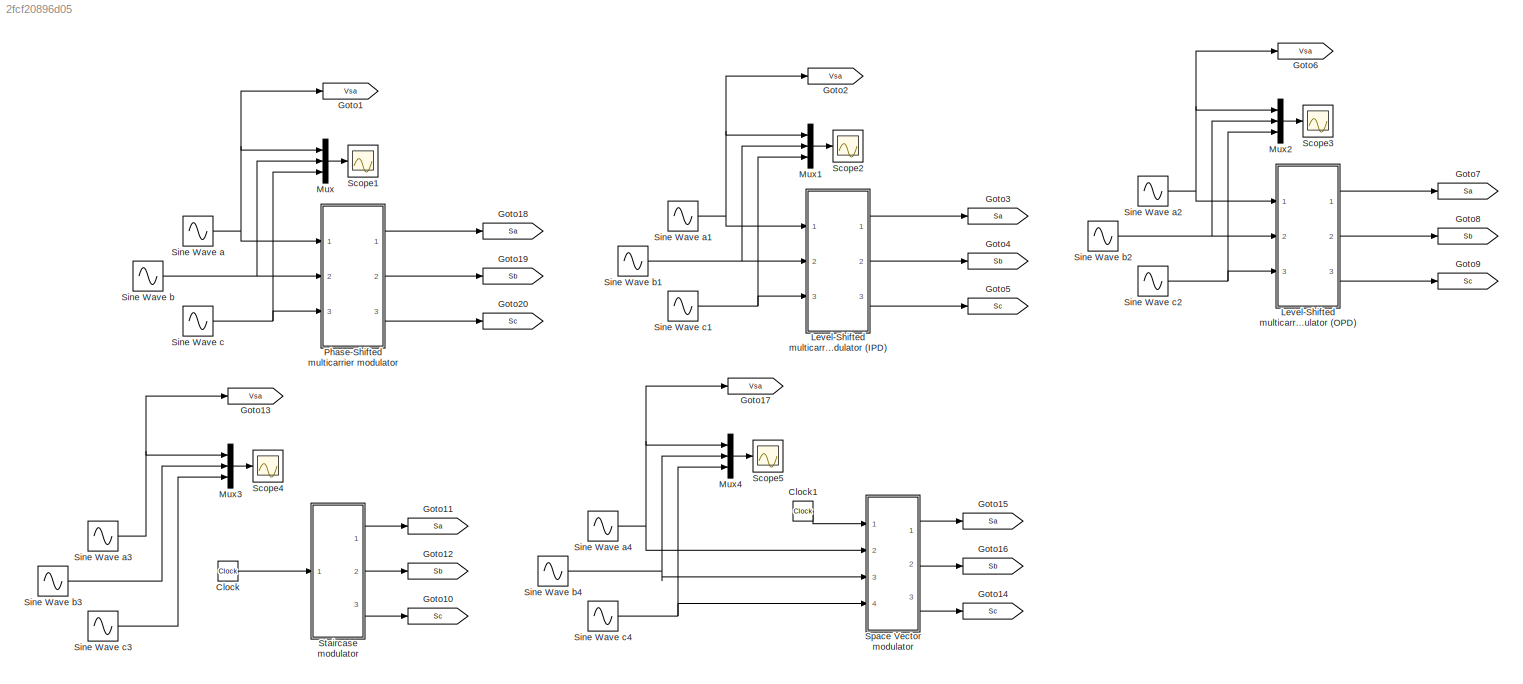
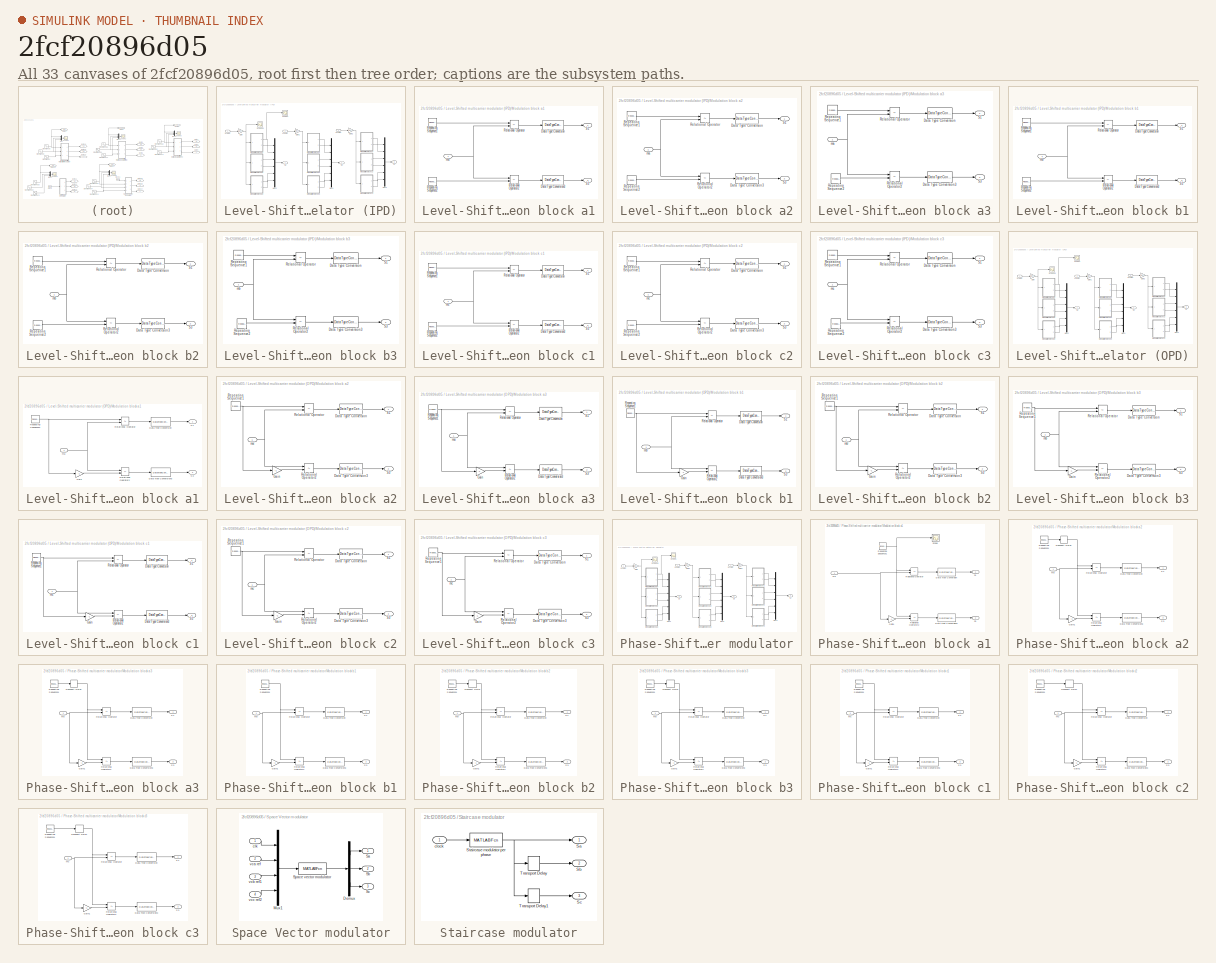
[diagram: thumbnail index - all 33 canvases of the model, root first then tree order]
MODEL slx_2fcf20896d05
KIND model
CONFIG InitFcn = GlobalParam;
BLOCK [Clock] Clock
BLOCK [Clock] Clock1
BLOCK [Goto] Goto1
  GotoTag = Vsa
BLOCK [Goto] Goto10
  GotoTag = Sc
BLOCK [Goto] Goto11
  GotoTag = Sa
BLOCK [Goto] Goto12
  GotoTag = Sb
BLOCK [Goto] Goto13
  GotoTag = Vsa
BLOCK [Goto] Goto14
  GotoTag = Sc
BLOCK [Goto] Goto15
  GotoTag = Sa
BLOCK [Goto] Goto16
  GotoTag = Sb
BLOCK [Goto] Goto17
  GotoTag = Vsa
BLOCK [Goto] Goto18
  GotoTag = Sa
BLOCK [Goto] Goto19
  GotoTag = Sb
BLOCK [Goto] Goto2
  GotoTag = Vsa
BLOCK [Goto] Goto20
  GotoTag = Sc
BLOCK [Goto] Goto3
  GotoTag = Sa
BLOCK [Goto] Goto4
  GotoTag = Sb
BLOCK [Goto] Goto5
  GotoTag = Sc
BLOCK [Goto] Goto6
  GotoTag = Vsa
BLOCK [Goto] Goto7
  GotoTag = Sa
BLOCK [Goto] Goto8
  GotoTag = Sb
BLOCK [Goto] Goto9
  GotoTag = Sc
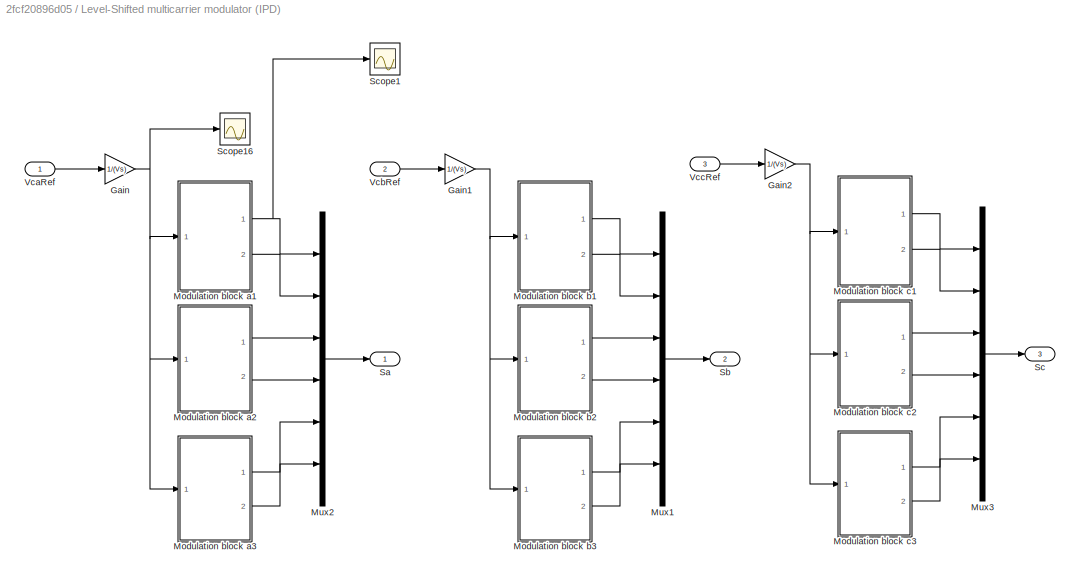
BLOCK [SubSystem] Level-Shifted multicarrier modulator (IPD)
  Ports = [3, 3]
  RequestExecContextInheritance = off
BLOCK [Gain] Level-Shifted multicarrier modulator (IPD)/Gain
  Gain = 1/(Vs)
  OutDataTypeStr = Inherit: Inherit via internal rule
  ParamDataTypeStr = Inherit: Inherit via internal rule
  SaturateOnIntegerOverflow = off
BLOCK [Gain] Level-Shifted multicarrier modulator (IPD)/Gain1
  Gain = 1/(Vs)
  OutDataTypeStr = Inherit: Inherit via internal rule
  ParamDataTypeStr = Inherit: Inherit via internal rule
  SaturateOnIntegerOverflow = off
BLOCK [Gain] Level-Shifted multicarrier modulator (IPD)/Gain2
  Gain = 1/(Vs)
  OutDataTypeStr = Inherit: Inherit via internal rule
  ParamDataTypeStr = Inherit: Inherit via internal rule
  SaturateOnIntegerOverflow = off
BLOCK [SubSystem] Level-Shifted multicarrier modulator (IPD)/Modulation block a1
  Ports = [1, 2]
  RequestExecContextInheritance = off
BLOCK [DataTypeConversion] Level-Shifted multicarrier modulator (IPD)/Modulation block a1/Data Type Conversion
  OutDataTypeStr = double
  RndMeth = Floor
  SaturateOnIntegerOverflow = off
BLOCK [DataTypeConversion] Level-Shifted multicarrier modulator (IPD)/Modulation block a1/Data Type Conversion3
  OutDataTypeStr = double
  RndMeth = Floor
  SaturateOnIntegerOverflow = off
BLOCK [RelationalOperator] Level-Shifted multicarrier modulator (IPD)/Modulation block a1/Relational Operator
  InputSameDT = off
  Operator = <=
  OutDataTypeStr = boolean
  Ports = [2, 1]
BLOCK [RelationalOperator] Level-Shifted multicarrier modulator (IPD)/Modulation block a1/Relational Operator2
  InputSameDT = off
  Operator = <=
  OutDataTypeStr = boolean
  Ports = [2, 1]
BLOCK [Reference] Level-Shifted multicarrier modulator (IPD)/Modulation block a1/Repeating Sequence1  REF=simulink/Sources/Repeating
Sequence
  Ports = [0, 1]
  SourceBlock = simulink/Sources/Repeating\nSequence
  SourceType = Repeating table
  rep_seq_t = [0 (1/fm)/2  1/fm]
  rep_seq_y = [4*vcrls 6*vcrls 4*vcrls]
BLOCK [Reference] Level-Shifted multicarrier modulator (IPD)/Modulation block a1/Repeating Sequence2  REF=simulink/Sources/Repeating
Sequence
  Ports = [0, 1]
  SourceBlock = simulink/Sources/Repeating\nSequence
  SourceType = Repeating table
  rep_seq_t = [0 (1/fm)/2  1/fm]
  rep_seq_y = [-6*vcrls -4*vcrls -6*vcrls]
BLOCK [Outport] Level-Shifted multicarrier modulator (IPD)/Modulation block a1/S1
  IconDisplay = Port number
BLOCK [Outport] Level-Shifted multicarrier modulator (IPD)/Modulation block a1/S3
  IconDisplay = Port number
  Port = 2
BLOCK [Inport] Level-Shifted multicarrier modulator (IPD)/Modulation block a1/ma
  IconDisplay = Port number
BLOCK [SubSystem] Level-Shifted multicarrier modulator (IPD)/Modulation block a2
  Ports = [1, 2]
  RequestExecContextInheritance = off
BLOCK [DataTypeConversion] Level-Shifted multicarrier modulator (IPD)/Modulation block a2/Data Type Conversion
  OutDataTypeStr = double
  RndMeth = Floor
  SaturateOnIntegerOverflow = off
BLOCK [DataTypeConversion] Level-Shifted multicarrier modulator (IPD)/Modulation block a2/Data Type Conversion3
  OutDataTypeStr = double
  RndMeth = Floor
  SaturateOnIntegerOverflow = off
BLOCK [RelationalOperator] Level-Shifted multicarrier modulator (IPD)/Modulation block a2/Relational Operator
  InputSameDT = off
  Operator = <=
  OutDataTypeStr = boolean
  Ports = [2, 1]
BLOCK [RelationalOperator] Level-Shifted multicarrier modulator (IPD)/Modulation block a2/Relational Operator2
  InputSameDT = off
  Operator = <=
  OutDataTypeStr = boolean
  Ports = [2, 1]
BLOCK [Reference] Level-Shifted multicarrier modulator (IPD)/Modulation block a2/Repeating Sequence1  REF=simulink/Sources/Repeating
Sequence
  Ports = [0, 1]
  SourceBlock = simulink/Sources/Repeating\nSequence
  SourceType = Repeating table
  rep_seq_t = [0 (1/fm)/2  1/fm]
  rep_seq_y = [2*vcrls 4*vcrls 2*vcrls]
BLOCK [Reference] Level-Shifted multicarrier modulator (IPD)/Modulation block a2/Repeating Sequence2  REF=simulink/Sources/Repeating
Sequence
  Ports = [0, 1]
  SourceBlock = simulink/Sources/Repeating\nSequence
  SourceType = Repeating table
  rep_seq_t = [0 (1/fm)/2  1/fm]
  rep_seq_y = [-4*vcrls -2*vcrls -4*vcrls]
BLOCK [Outport] Level-Shifted multicarrier modulator (IPD)/Modulation block a2/S1
  IconDisplay = Port number
BLOCK [Outport] Level-Shifted multicarrier modulator (IPD)/Modulation block a2/S3
  IconDisplay = Port number
  Port = 2
BLOCK [Inport] Level-Shifted multicarrier modulator (IPD)/Modulation block a2/ma
  IconDisplay = Port number
BLOCK [SubSystem] Level-Shifted multicarrier modulator (IPD)/Modulation block a3
  Ports = [1, 2]
  RequestExecContextInheritance = off
BLOCK [DataTypeConversion] Level-Shifted multicarrier modulator (IPD)/Modulation block a3/Data Type Conversion
  OutDataTypeStr = double
  RndMeth = Floor
  SaturateOnIntegerOverflow = off
BLOCK [DataTypeConversion] Level-Shifted multicarrier modulator (IPD)/Modulation block a3/Data Type Conversion3
  OutDataTypeStr = double
  RndMeth = Floor
  SaturateOnIntegerOverflow = off
BLOCK [RelationalOperator] Level-Shifted multicarrier modulator (IPD)/Modulation block a3/Relational Operator
  InputSameDT = off
  Operator = <=
  OutDataTypeStr = boolean
  Ports = [2, 1]
BLOCK [RelationalOperator] Level-Shifted multicarrier modulator (IPD)/Modulation block a3/Relational Operator2
  InputSameDT = off
  Operator = <=
  OutDataTypeStr = boolean
  Ports = [2, 1]
BLOCK [Reference] Level-Shifted multicarrier modulator (IPD)/Modulation block a3/Repeating Sequence1  REF=simulink/Sources/Repeating
Sequence
  Ports = [0, 1]
  SourceBlock = simulink/Sources/Repeating\nSequence
  SourceType = Repeating table
  rep_seq_t = [0 (1/fm)/2  1/fm]
  rep_seq_y = [0*vcrls 2*vcrls 0*vcrls]
BLOCK [Reference] Level-Shifted multicarrier modulator (IPD)/Modulation block a3/Repeating Sequence2  REF=simulink/Sources/Repeating
Sequence
  Ports = [0, 1]
  SourceBlock = simulink/Sources/Repeating\nSequence
  SourceType = Repeating table
  rep_seq_t = [0 (1/fm)/2  1/fm]
  rep_seq_y = [-2*vcrls 0 -2*vcrls]
BLOCK [Outport] Level-Shifted multicarrier modulator (IPD)/Modulation block a3/S1
  IconDisplay = Port number
BLOCK [Outport] Level-Shifted multicarrier modulator (IPD)/Modulation block a3/S3
  IconDisplay = Port number
  Port = 2
BLOCK [Inport] Level-Shifted multicarrier modulator (IPD)/Modulation block a3/ma
  IconDisplay = Port number
BLOCK [SubSystem] Level-Shifted multicarrier modulator (IPD)/Modulation block b1
  Ports = [1, 2]
  RequestExecContextInheritance = off
BLOCK [DataTypeConversion] Level-Shifted multicarrier modulator (IPD)/Modulation block b1/Data Type Conversion
  OutDataTypeStr = double
  RndMeth = Floor
  SaturateOnIntegerOverflow = off
BLOCK [DataTypeConversion] Level-Shifted multicarrier modulator (IPD)/Modulation block b1/Data Type Conversion3
  OutDataTypeStr = double
  RndMeth = Floor
  SaturateOnIntegerOverflow = off
BLOCK [RelationalOperator] Level-Shifted multicarrier modulator (IPD)/Modulation block b1/Relational Operator
  InputSameDT = off
  Operator = <=
  OutDataTypeStr = boolean
  Ports = [2, 1]
BLOCK [RelationalOperator] Level-Shifted multicarrier modulator (IPD)/Modulation block b1/Relational Operator2
  InputSameDT = off
  Operator = <=
  OutDataTypeStr = boolean
  Ports = [2, 1]
BLOCK [Reference] Level-Shifted multicarrier modulator (IPD)/Modulation block b1/Repeating Sequence1  REF=simulink/Sources/Repeating
Sequence
  Ports = [0, 1]
  SourceBlock = simulink/Sources/Repeating\nSequence
  SourceType = Repeating table
  rep_seq_t = [0 (1/fm)/2  1/fm]
  rep_seq_y = [4*vcrls 6*vcrls 4*vcrls]
BLOCK [Reference] Level-Shifted multicarrier modulator (IPD)/Modulation block b1/Repeating Sequence2  REF=simulink/Sources/Repeating
Sequence
  Ports = [0, 1]
  SourceBlock = simulink/Sources/Repeating\nSequence
  SourceType = Repeating table
  rep_seq_t = [0 (1/fm)/2  1/fm]
  rep_seq_y = [-6*vcrls -4*vcrls -6*vcrls]
BLOCK [Outport] Level-Shifted multicarrier modulator (IPD)/Modulation block b1/S1
  IconDisplay = Port number
BLOCK [Outport] Level-Shifted multicarrier modulator (IPD)/Modulation block b1/S3
  IconDisplay = Port number
  Port = 2
BLOCK [Inport] Level-Shifted multicarrier modulator (IPD)/Modulation block b1/mb
  IconDisplay = Port number
BLOCK [SubSystem] Level-Shifted multicarrier modulator (IPD)/Modulation block b2
  Ports = [1, 2]
  RequestExecContextInheritance = off
BLOCK [DataTypeConversion] Level-Shifted multicarrier modulator (IPD)/Modulation block b2/Data Type Conversion
  OutDataTypeStr = double
  RndMeth = Floor
  SaturateOnIntegerOverflow = off
BLOCK [DataTypeConversion] Level-Shifted multicarrier modulator (IPD)/Modulation block b2/Data Type Conversion3
  OutDataTypeStr = double
  RndMeth = Floor
  SaturateOnIntegerOverflow = off
BLOCK [RelationalOperator] Level-Shifted multicarrier modulator (IPD)/Modulation block b2/Relational Operator
  InputSameDT = off
  Operator = <=
  OutDataTypeStr = boolean
  Ports = [2, 1]
BLOCK [RelationalOperator] Level-Shifted multicarrier modulator (IPD)/Modulation block b2/Relational Operator2
  InputSameDT = off
  Operator = <=
  OutDataTypeStr = boolean
  Ports = [2, 1]
BLOCK [Reference] Level-Shifted multicarrier modulator (IPD)/Modulation block b2/Repeating Sequence1  REF=simulink/Sources/Repeating
Sequence
  Ports = [0, 1]
  SourceBlock = simulink/Sources/Repeating\nSequence
  SourceType = Repeating table
  rep_seq_t = [0 (1/fm)/2  1/fm]
  rep_seq_y = [2*vcrls 4*vcrls 2*vcrls]
BLOCK [Reference] Level-Shifted multicarrier modulator (IPD)/Modulation block b2/Repeating Sequence2  REF=simulink/Sources/Repeating
Sequence
  Ports = [0, 1]
  SourceBlock = simulink/Sources/Repeating\nSequence
  SourceType = Repeating table
  rep_seq_t = [0 (1/fm)/2  1/fm]
  rep_seq_y = [-4*vcrls -2*vcrls -4*vcrls]
BLOCK [Outport] Level-Shifted multicarrier modulator (IPD)/Modulation block b2/S1
  IconDisplay = Port number
BLOCK [Outport] Level-Shifted multicarrier modulator (IPD)/Modulation block b2/S3
  IconDisplay = Port number
  Port = 2
BLOCK [Inport] Level-Shifted multicarrier modulator (IPD)/Modulation block b2/mb
  IconDisplay = Port number
BLOCK [SubSystem] Level-Shifted multicarrier modulator (IPD)/Modulation block b3
  Ports = [1, 2]
  RequestExecContextInheritance = off
BLOCK [DataTypeConversion] Level-Shifted multicarrier modulator (IPD)/Modulation block b3/Data Type Conversion
  OutDataTypeStr = double
  RndMeth = Floor
  SaturateOnIntegerOverflow = off
BLOCK [DataTypeConversion] Level-Shifted multicarrier modulator (IPD)/Modulation block b3/Data Type Conversion3
  OutDataTypeStr = double
  RndMeth = Floor
  SaturateOnIntegerOverflow = off
BLOCK [RelationalOperator] Level-Shifted multicarrier modulator (IPD)/Modulation block b3/Relational Operator
  InputSameDT = off
  Operator = <=
  OutDataTypeStr = boolean
  Ports = [2, 1]
BLOCK [RelationalOperator] Level-Shifted multicarrier modulator (IPD)/Modulation block b3/Relational Operator2
  InputSameDT = off
  Operator = <=
  OutDataTypeStr = boolean
  Ports = [2, 1]
BLOCK [Reference] Level-Shifted multicarrier modulator (IPD)/Modulation block b3/Repeating Sequence1  REF=simulink/Sources/Repeating
Sequence
  Ports = [0, 1]
  SourceBlock = simulink/Sources/Repeating\nSequence
  SourceType = Repeating table
  rep_seq_t = [0 (1/fm)/2  1/fm]
  rep_seq_y = [0*vcrls 2*vcrls 0*vcrls]
BLOCK [Reference] Level-Shifted multicarrier modulator (IPD)/Modulation block b3/Repeating Sequence2  REF=simulink/Sources/Repeating
Sequence
  Ports = [0, 1]
  SourceBlock = simulink/Sources/Repeating\nSequence
  SourceType = Repeating table
  rep_seq_t = [0 (1/fm)/2  1/fm]
  rep_seq_y = [-2*vcrls 0 -2*vcrls]
BLOCK [Outport] Level-Shifted multicarrier modulator (IPD)/Modulation block b3/S1
  IconDisplay = Port number
BLOCK [Outport] Level-Shifted multicarrier modulator (IPD)/Modulation block b3/S3
  IconDisplay = Port number
  Port = 2
BLOCK [Inport] Level-Shifted multicarrier modulator (IPD)/Modulation block b3/mb
  IconDisplay = Port number
BLOCK [SubSystem] Level-Shifted multicarrier modulator (IPD)/Modulation block c1
  Ports = [1, 2]
  RequestExecContextInheritance = off
BLOCK [DataTypeConversion] Level-Shifted multicarrier modulator (IPD)/Modulation block c1/Data Type Conversion
  OutDataTypeStr = double
  RndMeth = Floor
  SaturateOnIntegerOverflow = off
BLOCK [DataTypeConversion] Level-Shifted multicarrier modulator (IPD)/Modulation block c1/Data Type Conversion3
  OutDataTypeStr = double
  RndMeth = Floor
  SaturateOnIntegerOverflow = off
BLOCK [RelationalOperator] Level-Shifted multicarrier modulator (IPD)/Modulation block c1/Relational Operator
  InputSameDT = off
  Operator = <=
  OutDataTypeStr = boolean
  Ports = [2, 1]
BLOCK [RelationalOperator] Level-Shifted multicarrier modulator (IPD)/Modulation block c1/Relational Operator2
  InputSameDT = off
  Operator = <=
  OutDataTypeStr = boolean
  Ports = [2, 1]
BLOCK [Reference] Level-Shifted multicarrier modulator (IPD)/Modulation block c1/Repeating Sequence1  REF=simulink/Sources/Repeating
Sequence
  Ports = [0, 1]
  SourceBlock = simulink/Sources/Repeating\nSequence
  SourceType = Repeating table
  rep_seq_t = [0 (1/fm)/2  1/fm]
  rep_seq_y = [4*vcrls 6*vcrls 4*vcrls]
BLOCK [Reference] Level-Shifted multicarrier modulator (IPD)/Modulation block c1/Repeating Sequence2  REF=simulink/Sources/Repeating
Sequence
  Ports = [0, 1]
  SourceBlock = simulink/Sources/Repeating\nSequence
  SourceType = Repeating table
  rep_seq_t = [0 (1/fm)/2  1/fm]
  rep_seq_y = [-6*vcrls -4*vcrls -6*vcrls]
BLOCK [Outport] Level-Shifted multicarrier modulator (IPD)/Modulation block c1/S1
  IconDisplay = Port number
BLOCK [Outport] Level-Shifted multicarrier modulator (IPD)/Modulation block c1/S3
  IconDisplay = Port number
  Port = 2
BLOCK [Inport] Level-Shifted multicarrier modulator (IPD)/Modulation block c1/mc
  IconDisplay = Port number
BLOCK [SubSystem] Level-Shifted multicarrier modulator (IPD)/Modulation block c2
  Ports = [1, 2]
  RequestExecContextInheritance = off
BLOCK [DataTypeConversion] Level-Shifted multicarrier modulator (IPD)/Modulation block c2/Data Type Conversion
  OutDataTypeStr = double
  RndMeth = Floor
  SaturateOnIntegerOverflow = off
BLOCK [DataTypeConversion] Level-Shifted multicarrier modulator (IPD)/Modulation block c2/Data Type Conversion3
  OutDataTypeStr = double
  RndMeth = Floor
  SaturateOnIntegerOverflow = off
BLOCK [RelationalOperator] Level-Shifted multicarrier modulator (IPD)/Modulation block c2/Relational Operator
  InputSameDT = off
  Operator = <=
  OutDataTypeStr = boolean
  Ports = [2, 1]
BLOCK [RelationalOperator] Level-Shifted multicarrier modulator (IPD)/Modulation block c2/Relational Operator2
  InputSameDT = off
  Operator = <=
  OutDataTypeStr = boolean
  Ports = [2, 1]
BLOCK [Reference] Level-Shifted multicarrier modulator (IPD)/Modulation block c2/Repeating Sequence1  REF=simulink/Sources/Repeating
Sequence
  Ports = [0, 1]
  SourceBlock = simulink/Sources/Repeating\nSequence
  SourceType = Repeating table
  rep_seq_t = [0 (1/fm)/2  1/fm]
  rep_seq_y = [2*vcrls 4*vcrls 2*vcrls]
BLOCK [Reference] Level-Shifted multicarrier modulator (IPD)/Modulation block c2/Repeating Sequence2  REF=simulink/Sources/Repeating
Sequence
  Ports = [0, 1]
  SourceBlock = simulink/Sources/Repeating\nSequence
  SourceType = Repeating table
  rep_seq_t = [0 (1/fm)/2  1/fm]
  rep_seq_y = [-4*vcrls -2*vcrls -4*vcrls]
BLOCK [Outport] Level-Shifted multicarrier modulator (IPD)/Modulation block c2/S1
  IconDisplay = Port number
BLOCK [Outport] Level-Shifted multicarrier modulator (IPD)/Modulation block c2/S3
  IconDisplay = Port number
  Port = 2
BLOCK [Inport] Level-Shifted multicarrier modulator (IPD)/Modulation block c2/mc
  IconDisplay = Port number
BLOCK [SubSystem] Level-Shifted multicarrier modulator (IPD)/Modulation block c3
  Ports = [1, 2]
  RequestExecContextInheritance = off
BLOCK [DataTypeConversion] Level-Shifted multicarrier modulator (IPD)/Modulation block c3/Data Type Conversion
  OutDataTypeStr = double
  RndMeth = Floor
  SaturateOnIntegerOverflow = off
BLOCK [DataTypeConversion] Level-Shifted multicarrier modulator (IPD)/Modulation block c3/Data Type Conversion3
  OutDataTypeStr = double
  RndMeth = Floor
  SaturateOnIntegerOverflow = off
BLOCK [RelationalOperator] Level-Shifted multicarrier modulator (IPD)/Modulation block c3/Relational Operator
  InputSameDT = off
  Operator = <=
  OutDataTypeStr = boolean
  Ports = [2, 1]
BLOCK [RelationalOperator] Level-Shifted multicarrier modulator (IPD)/Modulation block c3/Relational Operator2
  InputSameDT = off
  Operator = <=
  OutDataTypeStr = boolean
  Ports = [2, 1]
BLOCK [Reference] Level-Shifted multicarrier modulator (IPD)/Modulation block c3/Repeating Sequence1  REF=simulink/Sources/Repeating
Sequence
  Ports = [0, 1]
  SourceBlock = simulink/Sources/Repeating\nSequence
  SourceType = Repeating table
  rep_seq_t = [0 (1/fm)/2  1/fm]
  rep_seq_y = [0*vcrls 2*vcrls 0*vcrls]
BLOCK [Reference] Level-Shifted multicarrier modulator (IPD)/Modulation block c3/Repeating Sequence2  REF=simulink/Sources/Repeating
Sequence
  Ports = [0, 1]
  SourceBlock = simulink/Sources/Repeating\nSequence
  SourceType = Repeating table
  rep_seq_t = [0 (1/fm)/2  1/fm]
  rep_seq_y = [-2*vcrls 0 -2*vcrls]
BLOCK [Outport] Level-Shifted multicarrier modulator (IPD)/Modulation block c3/S1
  IconDisplay = Port number
BLOCK [Outport] Level-Shifted multicarrier modulator (IPD)/Modulation block c3/S3
  IconDisplay = Port number
  Port = 2
BLOCK [Inport] Level-Shifted multicarrier modulator (IPD)/Modulation block c3/mc
  IconDisplay = Port number
BLOCK [Mux] Level-Shifted multicarrier modulator (IPD)/Mux1
  DisplayOption = bar
  Inputs = 6
  Ports = [6, 1]
BLOCK [Mux] Level-Shifted multicarrier modulator (IPD)/Mux2
  DisplayOption = bar
  Inputs = 6
  Ports = [6, 1]
BLOCK [Mux] Level-Shifted multicarrier modulator (IPD)/Mux3
  DisplayOption = bar
  Inputs = 6
  Ports = [6, 1]
BLOCK [Outport] Level-Shifted multicarrier modulator (IPD)/Sa
  IconDisplay = Port number
BLOCK [Outport] Level-Shifted multicarrier modulator (IPD)/Sb
  IconDisplay = Port number
  Port = 2
BLOCK [Outport] Level-Shifted multicarrier modulator (IPD)/Sc
  IconDisplay = Port number
  Port = 3
BLOCK [Scope] Level-Shifted multicarrier modulator (IPD)/Scope1
  DataFormat = StructureWithTime
  Floating = off
  LimitDataPoints = off
  NumInputPorts = 1
  Ports = [1]
  SampleTime = 0
  SaveName = vg11
  SaveToWorkspace = on
  ShowLegends = off
BLOCK [Scope] Level-Shifted multicarrier modulator (IPD)/Scope16
  Floating = off
  LimitDataPoints = off
  NumInputPorts = 1
  Ports = [1]
  SampleTime = 0
  SaveName = vcareftri
  SaveToWorkspace = on
  ShowLegends = off
  YMax = 0.7
  YMin = -1
BLOCK [Inport] Level-Shifted multicarrier modulator (IPD)/VcaRef
  IconDisplay = Port number
BLOCK [Inport] Level-Shifted multicarrier modulator (IPD)/VcbRef
  IconDisplay = Port number
  Port = 2
BLOCK [Inport] Level-Shifted multicarrier modulator (IPD)/VccRef
  IconDisplay = Port number
  Port = 3
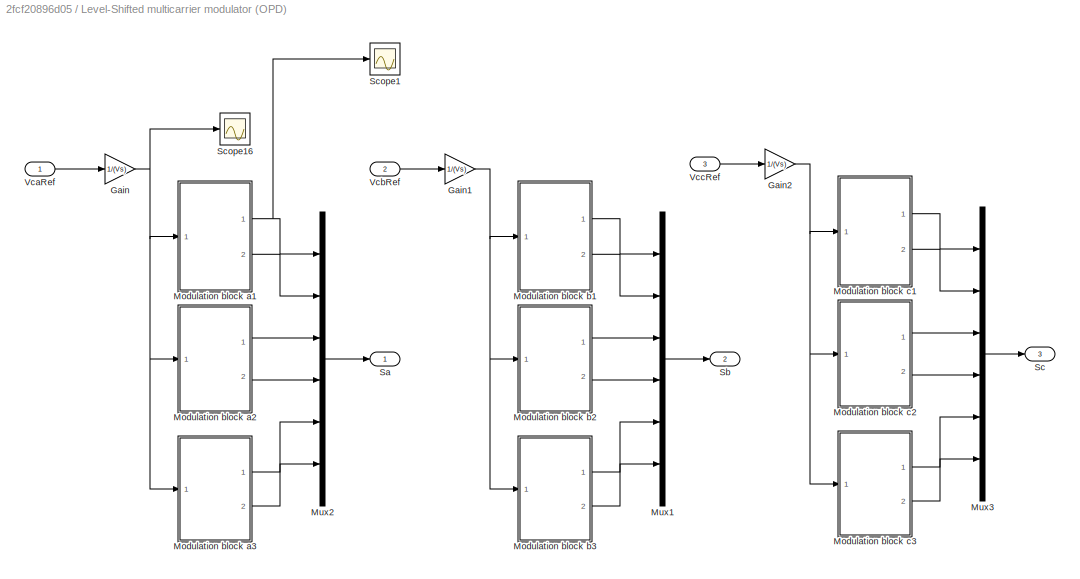
BLOCK [SubSystem] Level-Shifted multicarrier modulator (OPD)
  Ports = [3, 3]
  RequestExecContextInheritance = off
BLOCK [Gain] Level-Shifted multicarrier modulator (OPD)/Gain
  Gain = 1/(Vs)
  OutDataTypeStr = Inherit: Inherit via internal rule
  ParamDataTypeStr = Inherit: Inherit via internal rule
  SaturateOnIntegerOverflow = off
BLOCK [Gain] Level-Shifted multicarrier modulator (OPD)/Gain1
  Gain = 1/(Vs)
  OutDataTypeStr = Inherit: Inherit via internal rule
  ParamDataTypeStr = Inherit: Inherit via internal rule
  SaturateOnIntegerOverflow = off
BLOCK [Gain] Level-Shifted multicarrier modulator (OPD)/Gain2
  Gain = 1/(Vs)
  OutDataTypeStr = Inherit: Inherit via internal rule
  ParamDataTypeStr = Inherit: Inherit via internal rule
  SaturateOnIntegerOverflow = off
BLOCK [SubSystem] Level-Shifted multicarrier modulator (OPD)/Modulation block a1
  Ports = [1, 2]
  RequestExecContextInheritance = off
BLOCK [DataTypeConversion] Level-Shifted multicarrier modulator (OPD)/Modulation block a1/Data Type Conversion
  OutDataTypeStr = double
  RndMeth = Floor
  SaturateOnIntegerOverflow = off
BLOCK [DataTypeConversion] Level-Shifted multicarrier modulator (OPD)/Modulation block a1/Data Type Conversion3
  OutDataTypeStr = double
  RndMeth = Floor
  SaturateOnIntegerOverflow = off
BLOCK [Gain] Level-Shifted multicarrier modulator (OPD)/Modulation block a1/Gain
  Gain = -1
  OutDataTypeStr = Inherit: Inherit via internal rule
  ParamDataTypeStr = Inherit: Inherit via internal rule
  SaturateOnIntegerOverflow = off
BLOCK [RelationalOperator] Level-Shifted multicarrier modulator (OPD)/Modulation block a1/Relational Operator
  InputSameDT = off
  Operator = <=
  OutDataTypeStr = boolean
  Ports = [2, 1]
BLOCK [RelationalOperator] Level-Shifted multicarrier modulator (OPD)/Modulation block a1/Relational Operator2
  InputSameDT = off
  Operator = <=
  OutDataTypeStr = boolean
  Ports = [2, 1]
BLOCK [Reference] Level-Shifted multicarrier modulator (OPD)/Modulation block a1/Repeating Sequence1  REF=simulink/Sources/Repeating
Sequence
  Ports = [0, 1]
  SourceBlock = simulink/Sources/Repeating\nSequence
  SourceType = Repeating table
  rep_seq_t = [0 (1/fm)/2  1/fm]
  rep_seq_y = [4*vcrls 6*vcrls 4*vcrls]
BLOCK [Outport] Level-Shifted multicarrier modulator (OPD)/Modulation block a1/S1
  IconDisplay = Port number
BLOCK [Outport] Level-Shifted multicarrier modulator (OPD)/Modulation block a1/S3
  IconDisplay = Port number
  Port = 2
BLOCK [Inport] Level-Shifted multicarrier modulator (OPD)/Modulation block a1/ma
  IconDisplay = Port number
BLOCK [SubSystem] Level-Shifted multicarrier modulator (OPD)/Modulation block a2
  Ports = [1, 2]
  RequestExecContextInheritance = off
BLOCK [DataTypeConversion] Level-Shifted multicarrier modulator (OPD)/Modulation block a2/Data Type Conversion
  OutDataTypeStr = double
  RndMeth = Floor
  SaturateOnIntegerOverflow = off
BLOCK [DataTypeConversion] Level-Shifted multicarrier modulator (OPD)/Modulation block a2/Data Type Conversion3
  OutDataTypeStr = double
  RndMeth = Floor
  SaturateOnIntegerOverflow = off
BLOCK [Gain] Level-Shifted multicarrier modulator (OPD)/Modulation block a2/Gain
  Gain = -1
  OutDataTypeStr = Inherit: Inherit via internal rule
  ParamDataTypeStr = Inherit: Inherit via internal rule
  SaturateOnIntegerOverflow = off
BLOCK [RelationalOperator] Level-Shifted multicarrier modulator (OPD)/Modulation block a2/Relational Operator
  InputSameDT = off
  Operator = <=
  OutDataTypeStr = boolean
  Ports = [2, 1]
BLOCK [RelationalOperator] Level-Shifted multicarrier modulator (OPD)/Modulation block a2/Relational Operator2
  InputSameDT = off
  Operator = <=
  OutDataTypeStr = boolean
  Ports = [2, 1]
BLOCK [Reference] Level-Shifted multicarrier modulator (OPD)/Modulation block a2/Repeating Sequence1  REF=simulink/Sources/Repeating
Sequence
  Ports = [0, 1]
  SourceBlock = simulink/Sources/Repeating\nSequence
  SourceType = Repeating table
  rep_seq_t = [0 (1/fm)/2  1/fm]
  rep_seq_y = [2*vcrls 4*vcrls 2*vcrls]
BLOCK [Outport] Level-Shifted multicarrier modulator (OPD)/Modulation block a2/S1
  IconDisplay = Port number
BLOCK [Outport] Level-Shifted multicarrier modulator (OPD)/Modulation block a2/S3
  IconDisplay = Port number
  Port = 2
BLOCK [Inport] Level-Shifted multicarrier modulator (OPD)/Modulation block a2/ma
  IconDisplay = Port number
BLOCK [SubSystem] Level-Shifted multicarrier modulator (OPD)/Modulation block a3
  Ports = [1, 2]
  RequestExecContextInheritance = off
BLOCK [DataTypeConversion] Level-Shifted multicarrier modulator (OPD)/Modulation block a3/Data Type Conversion
  OutDataTypeStr = double
  RndMeth = Floor
  SaturateOnIntegerOverflow = off
BLOCK [DataTypeConversion] Level-Shifted multicarrier modulator (OPD)/Modulation block a3/Data Type Conversion3
  OutDataTypeStr = double
  RndMeth = Floor
  SaturateOnIntegerOverflow = off
BLOCK [Gain] Level-Shifted multicarrier modulator (OPD)/Modulation block a3/Gain
  Gain = -1
  OutDataTypeStr = Inherit: Inherit via internal rule
  ParamDataTypeStr = Inherit: Inherit via internal rule
  SaturateOnIntegerOverflow = off
BLOCK [RelationalOperator] Level-Shifted multicarrier modulator (OPD)/Modulation block a3/Relational Operator
  InputSameDT = off
  Operator = <=
  OutDataTypeStr = boolean
  Ports = [2, 1]
BLOCK [RelationalOperator] Level-Shifted multicarrier modulator (OPD)/Modulation block a3/Relational Operator2
  InputSameDT = off
  Operator = <=
  OutDataTypeStr = boolean
  Ports = [2, 1]
BLOCK [Reference] Level-Shifted multicarrier modulator (OPD)/Modulation block a3/Repeating Sequence1  REF=simulink/Sources/Repeating
Sequence
  Ports = [0, 1]
  SourceBlock = simulink/Sources/Repeating\nSequence
  SourceType = Repeating table
  rep_seq_t = [0 (1/fm)/2  1/fm]
  rep_seq_y = [0*vcrls 2*vcrls 0*vcrls]
BLOCK [Outport] Level-Shifted multicarrier modulator (OPD)/Modulation block a3/S1
  IconDisplay = Port number
BLOCK [Outport] Level-Shifted multicarrier modulator (OPD)/Modulation block a3/S3
  IconDisplay = Port number
  Port = 2
BLOCK [Inport] Level-Shifted multicarrier modulator (OPD)/Modulation block a3/ma
  IconDisplay = Port number
BLOCK [SubSystem] Level-Shifted multicarrier modulator (OPD)/Modulation block b1
  Ports = [1, 2]
  RequestExecContextInheritance = off
BLOCK [DataTypeConversion] Level-Shifted multicarrier modulator (OPD)/Modulation block b1/Data Type Conversion
  OutDataTypeStr = double
  RndMeth = Floor
  SaturateOnIntegerOverflow = off
BLOCK [DataTypeConversion] Level-Shifted multicarrier modulator (OPD)/Modulation block b1/Data Type Conversion3
  OutDataTypeStr = double
  RndMeth = Floor
  SaturateOnIntegerOverflow = off
BLOCK [Gain] Level-Shifted multicarrier modulator (OPD)/Modulation block b1/Gain
  Gain = -1
  OutDataTypeStr = Inherit: Inherit via internal rule
  ParamDataTypeStr = Inherit: Inherit via internal rule
  SaturateOnIntegerOverflow = off
BLOCK [RelationalOperator] Level-Shifted multicarrier modulator (OPD)/Modulation block b1/Relational Operator
  InputSameDT = off
  Operator = <=
  OutDataTypeStr = boolean
  Ports = [2, 1]
BLOCK [RelationalOperator] Level-Shifted multicarrier modulator (OPD)/Modulation block b1/Relational Operator2
  InputSameDT = off
  Operator = <=
  OutDataTypeStr = boolean
  Ports = [2, 1]
BLOCK [Reference] Level-Shifted multicarrier modulator (OPD)/Modulation block b1/Repeating Sequence1  REF=simulink/Sources/Repeating
Sequence
  Ports = [0, 1]
  SourceBlock = simulink/Sources/Repeating\nSequence
  SourceType = Repeating table
  rep_seq_t = [0 (1/fm)/2  1/fm]
  rep_seq_y = [4*vcrls 6*vcrls 4*vcrls]
BLOCK [Outport] Level-Shifted multicarrier modulator (OPD)/Modulation block b1/S1
  IconDisplay = Port number
BLOCK [Outport] Level-Shifted multicarrier modulator (OPD)/Modulation block b1/S3
  IconDisplay = Port number
  Port = 2
BLOCK [Inport] Level-Shifted multicarrier modulator (OPD)/Modulation block b1/mb
  IconDisplay = Port number
BLOCK [SubSystem] Level-Shifted multicarrier modulator (OPD)/Modulation block b2
  Ports = [1, 2]
  RequestExecContextInheritance = off
BLOCK [DataTypeConversion] Level-Shifted multicarrier modulator (OPD)/Modulation block b2/Data Type Conversion
  OutDataTypeStr = double
  RndMeth = Floor
  SaturateOnIntegerOverflow = off
BLOCK [DataTypeConversion] Level-Shifted multicarrier modulator (OPD)/Modulation block b2/Data Type Conversion3
  OutDataTypeStr = double
  RndMeth = Floor
  SaturateOnIntegerOverflow = off
BLOCK [Gain] Level-Shifted multicarrier modulator (OPD)/Modulation block b2/Gain
  Gain = -1
  OutDataTypeStr = Inherit: Inherit via internal rule
  ParamDataTypeStr = Inherit: Inherit via internal rule
  SaturateOnIntegerOverflow = off
BLOCK [RelationalOperator] Level-Shifted multicarrier modulator (OPD)/Modulation block b2/Relational Operator
  InputSameDT = off
  Operator = <=
  OutDataTypeStr = boolean
  Ports = [2, 1]
BLOCK [RelationalOperator] Level-Shifted multicarrier modulator (OPD)/Modulation block b2/Relational Operator2
  InputSameDT = off
  Operator = <=
  OutDataTypeStr = boolean
  Ports = [2, 1]
BLOCK [Reference] Level-Shifted multicarrier modulator (OPD)/Modulation block b2/Repeating Sequence1  REF=simulink/Sources/Repeating
Sequence
  Ports = [0, 1]
  SourceBlock = simulink/Sources/Repeating\nSequence
  SourceType = Repeating table
  rep_seq_t = [0 (1/fm)/2  1/fm]
  rep_seq_y = [2*vcrls 4*vcrls 2*vcrls]
BLOCK [Outport] Level-Shifted multicarrier modulator (OPD)/Modulation block b2/S1
  IconDisplay = Port number
BLOCK [Outport] Level-Shifted multicarrier modulator (OPD)/Modulation block b2/S3
  IconDisplay = Port number
  Port = 2
BLOCK [Inport] Level-Shifted multicarrier modulator (OPD)/Modulation block b2/mb
  IconDisplay = Port number
BLOCK [SubSystem] Level-Shifted multicarrier modulator (OPD)/Modulation block b3
  Ports = [1, 2]
  RequestExecContextInheritance = off
BLOCK [DataTypeConversion] Level-Shifted multicarrier modulator (OPD)/Modulation block b3/Data Type Conversion
  OutDataTypeStr = double
  RndMeth = Floor
  SaturateOnIntegerOverflow = off
BLOCK [DataTypeConversion] Level-Shifted multicarrier modulator (OPD)/Modulation block b3/Data Type Conversion3
  OutDataTypeStr = double
  RndMeth = Floor
  SaturateOnIntegerOverflow = off
BLOCK [Gain] Level-Shifted multicarrier modulator (OPD)/Modulation block b3/Gain
  Gain = -1
  OutDataTypeStr = Inherit: Inherit via internal rule
  ParamDataTypeStr = Inherit: Inherit via internal rule
  SaturateOnIntegerOverflow = off
BLOCK [RelationalOperator] Level-Shifted multicarrier modulator (OPD)/Modulation block b3/Relational Operator
  InputSameDT = off
  Operator = <=
  OutDataTypeStr = boolean
  Ports = [2, 1]
BLOCK [RelationalOperator] Level-Shifted multicarrier modulator (OPD)/Modulation block b3/Relational Operator2
  InputSameDT = off
  Operator = <=
  OutDataTypeStr = boolean
  Ports = [2, 1]
BLOCK [Reference] Level-Shifted multicarrier modulator (OPD)/Modulation block b3/Repeating Sequence1  REF=simulink/Sources/Repeating
Sequence
  Ports = [0, 1]
  SourceBlock = simulink/Sources/Repeating\nSequence
  SourceType = Repeating table
  rep_seq_t = [0 (1/fm)/2  1/fm]
  rep_seq_y = [0*vcrls 2*vcrls 0*vcrls]
BLOCK [Outport] Level-Shifted multicarrier modulator (OPD)/Modulation block b3/S1
  IconDisplay = Port number
BLOCK [Outport] Level-Shifted multicarrier modulator (OPD)/Modulation block b3/S3
  IconDisplay = Port number
  Port = 2
BLOCK [Inport] Level-Shifted multicarrier modulator (OPD)/Modulation block b3/mb
  IconDisplay = Port number
BLOCK [SubSystem] Level-Shifted multicarrier modulator (OPD)/Modulation block c1
  Ports = [1, 2]
  RequestExecContextInheritance = off
BLOCK [DataTypeConversion] Level-Shifted multicarrier modulator (OPD)/Modulation block c1/Data Type Conversion
  OutDataTypeStr = double
  RndMeth = Floor
  SaturateOnIntegerOverflow = off
BLOCK [DataTypeConversion] Level-Shifted multicarrier modulator (OPD)/Modulation block c1/Data Type Conversion3
  OutDataTypeStr = double
  RndMeth = Floor
  SaturateOnIntegerOverflow = off
BLOCK [Gain] Level-Shifted multicarrier modulator (OPD)/Modulation block c1/Gain
  Gain = -1
  OutDataTypeStr = Inherit: Inherit via internal rule
  ParamDataTypeStr = Inherit: Inherit via internal rule
  SaturateOnIntegerOverflow = off
BLOCK [RelationalOperator] Level-Shifted multicarrier modulator (OPD)/Modulation block c1/Relational Operator
  InputSameDT = off
  Operator = <=
  OutDataTypeStr = boolean
  Ports = [2, 1]
BLOCK [RelationalOperator] Level-Shifted multicarrier modulator (OPD)/Modulation block c1/Relational Operator2
  InputSameDT = off
  Operator = <=
  OutDataTypeStr = boolean
  Ports = [2, 1]
BLOCK [Reference] Level-Shifted multicarrier modulator (OPD)/Modulation block c1/Repeating Sequence1  REF=simulink/Sources/Repeating
Sequence
  Ports = [0, 1]
  SourceBlock = simulink/Sources/Repeating\nSequence
  SourceType = Repeating table
  rep_seq_t = [0 (1/fm)/2  1/fm]
  rep_seq_y = [4*vcrls 6*vcrls 4*vcrls]
BLOCK [Outport] Level-Shifted multicarrier modulator (OPD)/Modulation block c1/S1
  IconDisplay = Port number
BLOCK [Outport] Level-Shifted multicarrier modulator (OPD)/Modulation block c1/S3
  IconDisplay = Port number
  Port = 2
BLOCK [Inport] Level-Shifted multicarrier modulator (OPD)/Modulation block c1/mc
  IconDisplay = Port number
BLOCK [SubSystem] Level-Shifted multicarrier modulator (OPD)/Modulation block c2
  Ports = [1, 2]
  RequestExecContextInheritance = off
BLOCK [DataTypeConversion] Level-Shifted multicarrier modulator (OPD)/Modulation block c2/Data Type Conversion
  OutDataTypeStr = double
  RndMeth = Floor
  SaturateOnIntegerOverflow = off
BLOCK [DataTypeConversion] Level-Shifted multicarrier modulator (OPD)/Modulation block c2/Data Type Conversion3
  OutDataTypeStr = double
  RndMeth = Floor
  SaturateOnIntegerOverflow = off
BLOCK [Gain] Level-Shifted multicarrier modulator (OPD)/Modulation block c2/Gain
  Gain = -1
  OutDataTypeStr = Inherit: Inherit via internal rule
  ParamDataTypeStr = Inherit: Inherit via internal rule
  SaturateOnIntegerOverflow = off
BLOCK [RelationalOperator] Level-Shifted multicarrier modulator (OPD)/Modulation block c2/Relational Operator
  InputSameDT = off
  Operator = <=
  OutDataTypeStr = boolean
  Ports = [2, 1]
BLOCK [RelationalOperator] Level-Shifted multicarrier modulator (OPD)/Modulation block c2/Relational Operator2
  InputSameDT = off
  Operator = <=
  OutDataTypeStr = boolean
  Ports = [2, 1]
BLOCK [Reference] Level-Shifted multicarrier modulator (OPD)/Modulation block c2/Repeating Sequence1  REF=simulink/Sources/Repeating
Sequence
  Ports = [0, 1]
  SourceBlock = simulink/Sources/Repeating\nSequence
  SourceType = Repeating table
  rep_seq_t = [0 (1/fm)/2  1/fm]
  rep_seq_y = [2*vcrls 4*vcrls 2*vcrls]
BLOCK [Outport] Level-Shifted multicarrier modulator (OPD)/Modulation block c2/S1
  IconDisplay = Port number
BLOCK [Outport] Level-Shifted multicarrier modulator (OPD)/Modulation block c2/S3
  IconDisplay = Port number
  Port = 2
BLOCK [Inport] Level-Shifted multicarrier modulator (OPD)/Modulation block c2/mc
  IconDisplay = Port number
BLOCK [SubSystem] Level-Shifted multicarrier modulator (OPD)/Modulation block c3
  Ports = [1, 2]
  RequestExecContextInheritance = off
BLOCK [DataTypeConversion] Level-Shifted multicarrier modulator (OPD)/Modulation block c3/Data Type Conversion
  OutDataTypeStr = double
  RndMeth = Floor
  SaturateOnIntegerOverflow = off
BLOCK [DataTypeConversion] Level-Shifted multicarrier modulator (OPD)/Modulation block c3/Data Type Conversion3
  OutDataTypeStr = double
  RndMeth = Floor
  SaturateOnIntegerOverflow = off
BLOCK [Gain] Level-Shifted multicarrier modulator (OPD)/Modulation block c3/Gain
  Gain = -1
  OutDataTypeStr = Inherit: Inherit via internal rule
  ParamDataTypeStr = Inherit: Inherit via internal rule
  SaturateOnIntegerOverflow = off
BLOCK [RelationalOperator] Level-Shifted multicarrier modulator (OPD)/Modulation block c3/Relational Operator
  InputSameDT = off
  Operator = <=
  OutDataTypeStr = boolean
  Ports = [2, 1]
BLOCK [RelationalOperator] Level-Shifted multicarrier modulator (OPD)/Modulation block c3/Relational Operator2
  InputSameDT = off
  Operator = <=
  OutDataTypeStr = boolean
  Ports = [2, 1]
BLOCK [Reference] Level-Shifted multicarrier modulator (OPD)/Modulation block c3/Repeating Sequence1  REF=simulink/Sources/Repeating
Sequence
  Ports = [0, 1]
  SourceBlock = simulink/Sources/Repeating\nSequence
  SourceType = Repeating table
  rep_seq_t = [0 (1/fm)/2  1/fm]
  rep_seq_y = [0*vcrls 2*vcrls 0*vcrls]
BLOCK [Outport] Level-Shifted multicarrier modulator (OPD)/Modulation block c3/S1
  IconDisplay = Port number
BLOCK [Outport] Level-Shifted multicarrier modulator (OPD)/Modulation block c3/S3
  IconDisplay = Port number
  Port = 2
BLOCK [Inport] Level-Shifted multicarrier modulator (OPD)/Modulation block c3/mc
  IconDisplay = Port number
BLOCK [Mux] Level-Shifted multicarrier modulator (OPD)/Mux1
  DisplayOption = bar
  Inputs = 6
  Ports = [6, 1]
BLOCK [Mux] Level-Shifted multicarrier modulator (OPD)/Mux2
  DisplayOption = bar
  Inputs = 6
  Ports = [6, 1]
BLOCK [Mux] Level-Shifted multicarrier modulator (OPD)/Mux3
  DisplayOption = bar
  Inputs = 6
  Ports = [6, 1]
BLOCK [Outport] Level-Shifted multicarrier modulator (OPD)/Sa
  IconDisplay = Port number
BLOCK [Outport] Level-Shifted multicarrier modulator (OPD)/Sb
  IconDisplay = Port number
  Port = 2
BLOCK [Outport] Level-Shifted multicarrier modulator (OPD)/Sc
  IconDisplay = Port number
  Port = 3
BLOCK [Scope] Level-Shifted multicarrier modulator (OPD)/Scope1
  DataFormat = StructureWithTime
  Floating = off
  LimitDataPoints = off
  NumInputPorts = 1
  Ports = [1]
  SampleTime = 0
  SaveName = vg11
  SaveToWorkspace = on
  ShowLegends = off
BLOCK [Scope] Level-Shifted multicarrier modulator (OPD)/Scope16
  Floating = off
  LimitDataPoints = off
  NumInputPorts = 1
  Ports = [1]
  SampleTime = 0
  SaveName = vcareftri
  SaveToWorkspace = on
  ShowLegends = off
  YMax = 0.7
  YMin = -1
BLOCK [Inport] Level-Shifted multicarrier modulator (OPD)/VcaRef
  IconDisplay = Port number
BLOCK [Inport] Level-Shifted multicarrier modulator (OPD)/VcbRef
  IconDisplay = Port number
  Port = 2
BLOCK [Inport] Level-Shifted multicarrier modulator (OPD)/VccRef
  IconDisplay = Port number
  Port = 3
BLOCK [Mux] Mux
  DisplayOption = bar
  Inputs = 3
  Ports = [3, 1]
BLOCK [Mux] Mux1
  DisplayOption = bar
  Inputs = 3
  Ports = [3, 1]
BLOCK [Mux] Mux2
  DisplayOption = bar
  Inputs = 3
  Ports = [3, 1]
BLOCK [Mux] Mux3
  DisplayOption = bar
  Inputs = 3
  Ports = [3, 1]
BLOCK [Mux] Mux4
  DisplayOption = bar
  Inputs = 3
  Ports = [3, 1]
BLOCK [SubSystem] Phase-Shifted multicarrier modulator
  Ports = [3, 3]
  RequestExecContextInheritance = off
BLOCK [Gain] Phase-Shifted multicarrier modulator/Gain
  Gain = 1/(Vs)
  OutDataTypeStr = Inherit: Inherit via internal rule
  ParamDataTypeStr = Inherit: Inherit via internal rule
  SaturateOnIntegerOverflow = off
BLOCK [Gain] Phase-Shifted multicarrier modulator/Gain1
  Gain = 1/(Vs)
  OutDataTypeStr = Inherit: Inherit via internal rule
  ParamDataTypeStr = Inherit: Inherit via internal rule
  SaturateOnIntegerOverflow = off
BLOCK [Gain] Phase-Shifted multicarrier modulator/Gain2
  Gain = 1/(Vs)
  OutDataTypeStr = Inherit: Inherit via internal rule
  ParamDataTypeStr = Inherit: Inherit via internal rule
  SaturateOnIntegerOverflow = off
BLOCK [SubSystem] Phase-Shifted multicarrier modulator/Modulation block a1
  Ports = [1, 2]
  RequestExecContextInheritance = off
BLOCK [DataTypeConversion] Phase-Shifted multicarrier modulator/Modulation block a1/Data Type Conversion
  OutDataTypeStr = double
  RndMeth = Floor
  SaturateOnIntegerOverflow = off
BLOCK [DataTypeConversion] Phase-Shifted multicarrier modulator/Modulation block a1/Data Type Conversion3
  OutDataTypeStr = double
  RndMeth = Floor
  SaturateOnIntegerOverflow = off
BLOCK [Gain] Phase-Shifted multicarrier modulator/Modulation block a1/Gain1
  Gain = -1
  OutDataTypeStr = Inherit: Inherit via internal rule
  ParamDataTypeStr = Inherit: Inherit via internal rule
  SaturateOnIntegerOverflow = off
BLOCK [RelationalOperator] Phase-Shifted multicarrier modulator/Modulation block a1/Relational Operator
  InputSameDT = off
  Operator = <=
  OutDataTypeStr = boolean
  Ports = [2, 1]
BLOCK [RelationalOperator] Phase-Shifted multicarrier modulator/Modulation block a1/Relational Operator2
  InputSameDT = off
  Operator = <=
  OutDataTypeStr = boolean
  Ports = [2, 1]
BLOCK [Reference] Phase-Shifted multicarrier modulator/Modulation block a1/Repeating Sequence1  REF=simulink/Sources/Repeating
Sequence
  Ports = [0, 1]
  SourceBlock = simulink/Sources/Repeating\nSequence
  SourceType = Repeating table
  rep_seq_t = [0 (1/fm)/2  1/fm]
  rep_seq_y = [-1 1 -1]
BLOCK [Outport] Phase-Shifted multicarrier modulator/Modulation block a1/S1
  IconDisplay = Port number
BLOCK [Outport] Phase-Shifted multicarrier modulator/Modulation block a1/S3
  IconDisplay = Port number
  Port = 2
BLOCK [Scope] Phase-Shifted multicarrier modulator/Modulation block a1/Scope
  DataFormat = StructureWithTime
  Floating = off
  LimitDataPoints = off
  NumInputPorts = 1
  Ports = [1]
  SampleTime = 0
  SaveName = carrier
  SaveToWorkspace = on
  ShowLegends = off
BLOCK [Inport] Phase-Shifted multicarrier modulator/Modulation block a1/ma
  IconDisplay = Port number
BLOCK [SubSystem] Phase-Shifted multicarrier modulator/Modulation block a2
  Ports = [1, 2]
  RequestExecContextInheritance = off
BLOCK [DataTypeConversion] Phase-Shifted multicarrier modulator/Modulation block a2/Data Type Conversion
  OutDataTypeStr = double
  RndMeth = Floor
  SaturateOnIntegerOverflow = off
BLOCK [DataTypeConversion] Phase-Shifted multicarrier modulator/Modulation block a2/Data Type Conversion3
  OutDataTypeStr = double
  RndMeth = Floor
  SaturateOnIntegerOverflow = off
BLOCK [Gain] Phase-Shifted multicarrier modulator/Modulation block a2/Gain1
  Gain = -1
  OutDataTypeStr = Inherit: Inherit via internal rule
  ParamDataTypeStr = Inherit: Inherit via internal rule
  SaturateOnIntegerOverflow = off
BLOCK [RelationalOperator] Phase-Shifted multicarrier modulator/Modulation block a2/Relational Operator
  InputSameDT = off
  Operator = <=
  OutDataTypeStr = boolean
  Ports = [2, 1]
BLOCK [RelationalOperator] Phase-Shifted multicarrier modulator/Modulation block a2/Relational Operator2
  InputSameDT = off
  Operator = <=
  OutDataTypeStr = boolean
  Ports = [2, 1]
BLOCK [Reference] Phase-Shifted multicarrier modulator/Modulation block a2/Repeating Sequence1  REF=simulink/Sources/Repeating
Sequence
  Ports = [0, 1]
  SourceBlock = simulink/Sources/Repeating\nSequence
  SourceType = Repeating table
  rep_seq_t = [0 (1/fm)/2  1/fm]
  rep_seq_y = [-1 1 -1]
BLOCK [Outport] Phase-Shifted multicarrier modulator/Modulation block a2/S1
  IconDisplay = Port number
BLOCK [Outport] Phase-Shifted multicarrier modulator/Modulation block a2/S3
  IconDisplay = Port number
  Port = 2
BLOCK [TransportDelay] Phase-Shifted multicarrier modulator/Modulation block a2/Transport Delay
  DelayTime = Tm*(180/nc)/360
  Ports = [1, 1]
BLOCK [Inport] Phase-Shifted multicarrier modulator/Modulation block a2/ma
  IconDisplay = Port number
BLOCK [SubSystem] Phase-Shifted multicarrier modulator/Modulation block a3
  Ports = [1, 2]
  RequestExecContextInheritance = off
BLOCK [DataTypeConversion] Phase-Shifted multicarrier modulator/Modulation block a3/Data Type Conversion
  OutDataTypeStr = double
  RndMeth = Floor
  SaturateOnIntegerOverflow = off
BLOCK [DataTypeConversion] Phase-Shifted multicarrier modulator/Modulation block a3/Data Type Conversion3
  OutDataTypeStr = double
  RndMeth = Floor
  SaturateOnIntegerOverflow = off
BLOCK [Gain] Phase-Shifted multicarrier modulator/Modulation block a3/Gain1
  Gain = -1
  OutDataTypeStr = Inherit: Inherit via internal rule
  ParamDataTypeStr = Inherit: Inherit via internal rule
  SaturateOnIntegerOverflow = off
BLOCK [RelationalOperator] Phase-Shifted multicarrier modulator/Modulation block a3/Relational Operator
  InputSameDT = off
  Operator = <=
  OutDataTypeStr = boolean
  Ports = [2, 1]
BLOCK [RelationalOperator] Phase-Shifted multicarrier modulator/Modulation block a3/Relational Operator2
  InputSameDT = off
  Operator = <=
  OutDataTypeStr = boolean
  Ports = [2, 1]
BLOCK [Reference] Phase-Shifted multicarrier modulator/Modulation block a3/Repeating Sequence1  REF=simulink/Sources/Repeating
Sequence
  Ports = [0, 1]
  SourceBlock = simulink/Sources/Repeating\nSequence
  SourceType = Repeating table
  rep_seq_t = [0 (1/fm)/2  1/fm]
  rep_seq_y = [-1 1 -1]
BLOCK [Outport] Phase-Shifted multicarrier modulator/Modulation block a3/S1
  IconDisplay = Port number
BLOCK [Outport] Phase-Shifted multicarrier modulator/Modulation block a3/S3
  IconDisplay = Port number
  Port = 2
BLOCK [TransportDelay] Phase-Shifted multicarrier modulator/Modulation block a3/Transport Delay
  DelayTime = (Tm*(180/nc)/360)*2
  Ports = [1, 1]
BLOCK [Inport] Phase-Shifted multicarrier modulator/Modulation block a3/ma
  IconDisplay = Port number
BLOCK [SubSystem] Phase-Shifted multicarrier modulator/Modulation block b1
  Ports = [1, 2]
  RequestExecContextInheritance = off
BLOCK [DataTypeConversion] Phase-Shifted multicarrier modulator/Modulation block b1/Data Type Conversion
  OutDataTypeStr = double
  RndMeth = Floor
  SaturateOnIntegerOverflow = off
BLOCK [DataTypeConversion] Phase-Shifted multicarrier modulator/Modulation block b1/Data Type Conversion3
  OutDataTypeStr = double
  RndMeth = Floor
  SaturateOnIntegerOverflow = off
BLOCK [Gain] Phase-Shifted multicarrier modulator/Modulation block b1/Gain1
  Gain = -1
  OutDataTypeStr = Inherit: Inherit via internal rule
  ParamDataTypeStr = Inherit: Inherit via internal rule
  SaturateOnIntegerOverflow = off
BLOCK [RelationalOperator] Phase-Shifted multicarrier modulator/Modulation block b1/Relational Operator
  InputSameDT = off
  Operator = <=
  OutDataTypeStr = boolean
  Ports = [2, 1]
BLOCK [RelationalOperator] Phase-Shifted multicarrier modulator/Modulation block b1/Relational Operator2
  InputSameDT = off
  Operator = <=
  OutDataTypeStr = boolean
  Ports = [2, 1]
BLOCK [Reference] Phase-Shifted multicarrier modulator/Modulation block b1/Repeating Sequence1  REF=simulink/Sources/Repeating
Sequence
  Ports = [0, 1]
  SourceBlock = simulink/Sources/Repeating\nSequence
  SourceType = Repeating table
  rep_seq_t = [0 (1/fm)/2  1/fm]
  rep_seq_y = [-1 1 -1]
BLOCK [Outport] Phase-Shifted multicarrier modulator/Modulation block b1/S1
  IconDisplay = Port number
BLOCK [Outport] Phase-Shifted multicarrier modulator/Modulation block b1/S3
  IconDisplay = Port number
  Port = 2
BLOCK [Inport] Phase-Shifted multicarrier modulator/Modulation block b1/mb
  IconDisplay = Port number
BLOCK [SubSystem] Phase-Shifted multicarrier modulator/Modulation block b2
  Ports = [1, 2]
  RequestExecContextInheritance = off
BLOCK [DataTypeConversion] Phase-Shifted multicarrier modulator/Modulation block b2/Data Type Conversion
  OutDataTypeStr = double
  RndMeth = Floor
  SaturateOnIntegerOverflow = off
BLOCK [DataTypeConversion] Phase-Shifted multicarrier modulator/Modulation block b2/Data Type Conversion3
  OutDataTypeStr = double
  RndMeth = Floor
  SaturateOnIntegerOverflow = off
BLOCK [Gain] Phase-Shifted multicarrier modulator/Modulation block b2/Gain1
  Gain = -1
  OutDataTypeStr = Inherit: Inherit via internal rule
  ParamDataTypeStr = Inherit: Inherit via internal rule
  SaturateOnIntegerOverflow = off
BLOCK [RelationalOperator] Phase-Shifted multicarrier modulator/Modulation block b2/Relational Operator
  InputSameDT = off
  Operator = <=
  OutDataTypeStr = boolean
  Ports = [2, 1]
BLOCK [RelationalOperator] Phase-Shifted multicarrier modulator/Modulation block b2/Relational Operator2
  InputSameDT = off
  Operator = <=
  OutDataTypeStr = boolean
  Ports = [2, 1]
BLOCK [Reference] Phase-Shifted multicarrier modulator/Modulation block b2/Repeating Sequence1  REF=simulink/Sources/Repeating
Sequence
  Ports = [0, 1]
  SourceBlock = simulink/Sources/Repeating\nSequence
  SourceType = Repeating table
  rep_seq_t = [0 (1/fm)/2  1/fm]
  rep_seq_y = [-1 1 -1]
BLOCK [Outport] Phase-Shifted multicarrier modulator/Modulation block b2/S1
  IconDisplay = Port number
BLOCK [Outport] Phase-Shifted multicarrier modulator/Modulation block b2/S3
  IconDisplay = Port number
  Port = 2
BLOCK [TransportDelay] Phase-Shifted multicarrier modulator/Modulation block b2/Transport Delay
  DelayTime = Tm*(180/nc)/360
  Ports = [1, 1]
BLOCK [Inport] Phase-Shifted multicarrier modulator/Modulation block b2/mb
  IconDisplay = Port number
BLOCK [SubSystem] Phase-Shifted multicarrier modulator/Modulation block b3
  Ports = [1, 2]
  RequestExecContextInheritance = off
BLOCK [DataTypeConversion] Phase-Shifted multicarrier modulator/Modulation block b3/Data Type Conversion
  OutDataTypeStr = double
  RndMeth = Floor
  SaturateOnIntegerOverflow = off
BLOCK [DataTypeConversion] Phase-Shifted multicarrier modulator/Modulation block b3/Data Type Conversion3
  OutDataTypeStr = double
  RndMeth = Floor
  SaturateOnIntegerOverflow = off
BLOCK [Gain] Phase-Shifted multicarrier modulator/Modulation block b3/Gain1
  Gain = -1
  OutDataTypeStr = Inherit: Inherit via internal rule
  ParamDataTypeStr = Inherit: Inherit via internal rule
  SaturateOnIntegerOverflow = off
BLOCK [RelationalOperator] Phase-Shifted multicarrier modulator/Modulation block b3/Relational Operator
  InputSameDT = off
  Operator = <=
  OutDataTypeStr = boolean
  Ports = [2, 1]
BLOCK [RelationalOperator] Phase-Shifted multicarrier modulator/Modulation block b3/Relational Operator2
  InputSameDT = off
  Operator = <=
  OutDataTypeStr = boolean
  Ports = [2, 1]
BLOCK [Reference] Phase-Shifted multicarrier modulator/Modulation block b3/Repeating Sequence1  REF=simulink/Sources/Repeating
Sequence
  Ports = [0, 1]
  SourceBlock = simulink/Sources/Repeating\nSequence
  SourceType = Repeating table
  rep_seq_t = [0 (1/fm)/2  1/fm]
  rep_seq_y = [-1 1 -1]
BLOCK [Outport] Phase-Shifted multicarrier modulator/Modulation block b3/S1
  IconDisplay = Port number
BLOCK [Outport] Phase-Shifted multicarrier modulator/Modulation block b3/S3
  IconDisplay = Port number
  Port = 2
BLOCK [TransportDelay] Phase-Shifted multicarrier modulator/Modulation block b3/Transport Delay
  DelayTime = (Tm*(180/nc)/360)*2
  Ports = [1, 1]
BLOCK [Inport] Phase-Shifted multicarrier modulator/Modulation block b3/mb
  IconDisplay = Port number
BLOCK [SubSystem] Phase-Shifted multicarrier modulator/Modulation block c1
  Ports = [1, 2]
  RequestExecContextInheritance = off
BLOCK [DataTypeConversion] Phase-Shifted multicarrier modulator/Modulation block c1/Data Type Conversion
  OutDataTypeStr = double
  RndMeth = Floor
  SaturateOnIntegerOverflow = off
BLOCK [DataTypeConversion] Phase-Shifted multicarrier modulator/Modulation block c1/Data Type Conversion3
  OutDataTypeStr = double
  RndMeth = Floor
  SaturateOnIntegerOverflow = off
BLOCK [Gain] Phase-Shifted multicarrier modulator/Modulation block c1/Gain1
  Gain = -1
  OutDataTypeStr = Inherit: Inherit via internal rule
  ParamDataTypeStr = Inherit: Inherit via internal rule
  SaturateOnIntegerOverflow = off
BLOCK [RelationalOperator] Phase-Shifted multicarrier modulator/Modulation block c1/Relational Operator
  InputSameDT = off
  Operator = <=
  OutDataTypeStr = boolean
  Ports = [2, 1]
BLOCK [RelationalOperator] Phase-Shifted multicarrier modulator/Modulation block c1/Relational Operator2
  InputSameDT = off
  Operator = <=
  OutDataTypeStr = boolean
  Ports = [2, 1]
BLOCK [Reference] Phase-Shifted multicarrier modulator/Modulation block c1/Repeating Sequence1  REF=simulink/Sources/Repeating
Sequence
  Ports = [0, 1]
  SourceBlock = simulink/Sources/Repeating\nSequence
  SourceType = Repeating table
  rep_seq_t = [0 (1/fm)/2  1/fm]
  rep_seq_y = [-1 1 -1]
BLOCK [Outport] Phase-Shifted multicarrier modulator/Modulation block c1/S1
  IconDisplay = Port number
BLOCK [Outport] Phase-Shifted multicarrier modulator/Modulation block c1/S3
  IconDisplay = Port number
  Port = 2
BLOCK [Inport] Phase-Shifted multicarrier modulator/Modulation block c1/mc
  IconDisplay = Port number
BLOCK [SubSystem] Phase-Shifted multicarrier modulator/Modulation block c2
  Ports = [1, 2]
  RequestExecContextInheritance = off
BLOCK [DataTypeConversion] Phase-Shifted multicarrier modulator/Modulation block c2/Data Type Conversion
  OutDataTypeStr = double
  RndMeth = Floor
  SaturateOnIntegerOverflow = off
BLOCK [DataTypeConversion] Phase-Shifted multicarrier modulator/Modulation block c2/Data Type Conversion3
  OutDataTypeStr = double
  RndMeth = Floor
  SaturateOnIntegerOverflow = off
BLOCK [Gain] Phase-Shifted multicarrier modulator/Modulation block c2/Gain1
  Gain = -1
  OutDataTypeStr = Inherit: Inherit via internal rule
  ParamDataTypeStr = Inherit: Inherit via internal rule
  SaturateOnIntegerOverflow = off
BLOCK [RelationalOperator] Phase-Shifted multicarrier modulator/Modulation block c2/Relational Operator
  InputSameDT = off
  Operator = <=
  OutDataTypeStr = boolean
  Ports = [2, 1]
BLOCK [RelationalOperator] Phase-Shifted multicarrier modulator/Modulation block c2/Relational Operator2
  InputSameDT = off
  Operator = <=
  OutDataTypeStr = boolean
  Ports = [2, 1]
BLOCK [Reference] Phase-Shifted multicarrier modulator/Modulation block c2/Repeating Sequence1  REF=simulink/Sources/Repeating
Sequence
  Ports = [0, 1]
  SourceBlock = simulink/Sources/Repeating\nSequence
  SourceType = Repeating table
  rep_seq_t = [0 (1/fm)/2  1/fm]
  rep_seq_y = [-1 1 -1]
BLOCK [Outport] Phase-Shifted multicarrier modulator/Modulation block c2/S1
  IconDisplay = Port number
BLOCK [Outport] Phase-Shifted multicarrier modulator/Modulation block c2/S3
  IconDisplay = Port number
  Port = 2
BLOCK [TransportDelay] Phase-Shifted multicarrier modulator/Modulation block c2/Transport Delay
  DelayTime = (Tm*(180/nc)/360)*2
  Ports = [1, 1]
BLOCK [Inport] Phase-Shifted multicarrier modulator/Modulation block c2/mc
  IconDisplay = Port number
BLOCK [SubSystem] Phase-Shifted multicarrier modulator/Modulation block c3
  Ports = [1, 2]
  RequestExecContextInheritance = off
BLOCK [DataTypeConversion] Phase-Shifted multicarrier modulator/Modulation block c3/Data Type Conversion
  OutDataTypeStr = double
  RndMeth = Floor
  SaturateOnIntegerOverflow = off
BLOCK [DataTypeConversion] Phase-Shifted multicarrier modulator/Modulation block c3/Data Type Conversion3
  OutDataTypeStr = double
  RndMeth = Floor
  SaturateOnIntegerOverflow = off
BLOCK [Gain] Phase-Shifted multicarrier modulator/Modulation block c3/Gain1
  Gain = -1
  OutDataTypeStr = Inherit: Inherit via internal rule
  ParamDataTypeStr = Inherit: Inherit via internal rule
  SaturateOnIntegerOverflow = off
BLOCK [RelationalOperator] Phase-Shifted multicarrier modulator/Modulation block c3/Relational Operator
  InputSameDT = off
  Operator = <=
  OutDataTypeStr = boolean
  Ports = [2, 1]
BLOCK [RelationalOperator] Phase-Shifted multicarrier modulator/Modulation block c3/Relational Operator2
  InputSameDT = off
  Operator = <=
  OutDataTypeStr = boolean
  Ports = [2, 1]
BLOCK [Reference] Phase-Shifted multicarrier modulator/Modulation block c3/Repeating Sequence1  REF=simulink/Sources/Repeating
Sequence
  Ports = [0, 1]
  SourceBlock = simulink/Sources/Repeating\nSequence
  SourceType = Repeating table
  rep_seq_t = [0 (1/fm)/2  1/fm]
  rep_seq_y = [-1 1 -1]
BLOCK [Outport] Phase-Shifted multicarrier modulator/Modulation block c3/S1
  IconDisplay = Port number
BLOCK [Outport] Phase-Shifted multicarrier modulator/Modulation block c3/S3
  IconDisplay = Port number
  Port = 2
BLOCK [TransportDelay] Phase-Shifted multicarrier modulator/Modulation block c3/Transport Delay
  DelayTime = (Tm*(180/nc)/360)*2
  Ports = [1, 1]
BLOCK [Inport] Phase-Shifted multicarrier modulator/Modulation block c3/mc
  IconDisplay = Port number
BLOCK [Mux] Phase-Shifted multicarrier modulator/Mux2
  DisplayOption = bar
  Inputs = 6
  Ports = [6, 1]
BLOCK [Mux] Phase-Shifted multicarrier modulator/Mux3
  DisplayOption = bar
  Inputs = 6
  Ports = [6, 1]
BLOCK [Mux] Phase-Shifted multicarrier modulator/Mux4
  DisplayOption = bar
  Inputs = 6
  Ports = [6, 1]
BLOCK [Outport] Phase-Shifted multicarrier modulator/Sa
  IconDisplay = Port number
BLOCK [Outport] Phase-Shifted multicarrier modulator/Sb
  IconDisplay = Port number
  Port = 2
BLOCK [Outport] Phase-Shifted multicarrier modulator/Sc
  IconDisplay = Port number
  Port = 3
BLOCK [Scope] Phase-Shifted multicarrier modulator/Scope1
  DataFormat = StructureWithTime
  Floating = off
  LimitDataPoints = off
  NumInputPorts = 1
  Ports = [1]
  SampleTime = 0
  SaveName = vg11
  SaveToWorkspace = on
  ShowLegends = off
BLOCK [Scope] Phase-Shifted multicarrier modulator/Scope16
  Floating = off
  LimitDataPoints = off
  NumInputPorts = 1
  Ports = [1]
  SampleTime = 0
  SaveName = vcareftri
  SaveToWorkspace = on
  ShowLegends = off
  YMax = 0.7
  YMin = -1
BLOCK [Inport] Phase-Shifted multicarrier modulator/VcaRef
  IconDisplay = Port number
BLOCK [Inport] Phase-Shifted multicarrier modulator/VcbRef
  IconDisplay = Port number
  Port = 2
BLOCK [Inport] Phase-Shifted multicarrier modulator/VccRef
  IconDisplay = Port number
  Port = 3
BLOCK [Scope] Scope1
  DataFormat = StructureWithTime
  Floating = off
  LimitDataPoints = off
  NumInputPorts = 1
  Ports = [1]
  SampleTime = 0
  SaveName = vca1
  ShowLegends = off
  YMax = 37500
  YMin = -2500
BLOCK [Scope] Scope2
  DataFormat = StructureWithTime
  Floating = off
  LimitDataPoints = off
  NumInputPorts = 1
  Ports = [1]
  SampleTime = 0
  SaveName = vca
  ShowLegends = off
  YMax = 37500
  YMin = -2500
BLOCK [Scope] Scope3
  DataFormat = StructureWithTime
  Floating = off
  LimitDataPoints = off
  NumInputPorts = 1
  Ports = [1]
  SampleTime = 0
  SaveName = vca2
  ShowLegends = off
  YMax = 37500
  YMin = -2500
BLOCK [Scope] Scope4
  DataFormat = StructureWithTime
  Floating = off
  LimitDataPoints = off
  NumInputPorts = 1
  Ports = [1]
  SampleTime = 0
  SaveName = vca3
  ShowLegends = off
  YMax = 37500
  YMin = -2500
BLOCK [Scope] Scope5
  DataFormat = StructureWithTime
  Floating = off
  LimitDataPoints = off
  NumInputPorts = 1
  Ports = [1]
  SampleTime = 0
  SaveName = vca4
  ShowLegends = off
  YMax = 37500
  YMin = -2500
BLOCK [Sin] Sine Wave a
  Amplitude = Vs
  Frequency = we
  Phase = tetaa
  Ports = [0, 1]
  SampleTime = 0
BLOCK [Sin] Sine Wave a1
  Amplitude = Vs
  Frequency = we
  Ports = [0, 1]
  SampleTime = 0
BLOCK [Sin] Sine Wave a2
  Amplitude = Vs
  Frequency = we
  Ports = [0, 1]
  SampleTime = 0
BLOCK [Sin] Sine Wave a3
  Amplitude = Vs
  Frequency = we
  Phase = tetaa
  Ports = [0, 1]
  SampleTime = 0
BLOCK [Sin] Sine Wave a4
  Amplitude = Vs
  Frequency = we
  Phase = tetaa
  Ports = [0, 1]
  SampleTime = 0
BLOCK [Sin] Sine Wave b
  Amplitude = Vs
  Frequency = we
  Phase = tetab*pi/180
  Ports = [0, 1]
  SampleTime = 0
BLOCK [Sin] Sine Wave b1
  Amplitude = Vs
  Frequency = we
  Phase = tetab*pi/180
  Ports = [0, 1]
  SampleTime = 0
BLOCK [Sin] Sine Wave b2
  Amplitude = Vs
  Frequency = we
  Phase = tetab*pi/180
  Ports = [0, 1]
  SampleTime = 0
BLOCK [Sin] Sine Wave b3
  Amplitude = Vs
  Frequency = we
  Phase = tetab*pi/180
  Ports = [0, 1]
  SampleTime = 0
BLOCK [Sin] Sine Wave b4
  Amplitude = Vs
  Frequency = we
  Phase = tetab*pi/180
  Ports = [0, 1]
  SampleTime = 0
BLOCK [Sin] Sine Wave c
  Amplitude = Vs
  Frequency = we
  Phase = tetac*pi/180
  Ports = [0, 1]
  SampleTime = 0
BLOCK [Sin] Sine Wave c1
  Amplitude = Vs
  Frequency = we
  Phase = tetac*pi/180
  Ports = [0, 1]
  SampleTime = 0
BLOCK [Sin] Sine Wave c2
  Amplitude = Vs
  Frequency = we
  Phase = tetac*pi/180
  Ports = [0, 1]
  SampleTime = 0
BLOCK [Sin] Sine Wave c3
  Amplitude = Vs
  Frequency = we
  Phase = tetac*pi/180
  Ports = [0, 1]
  SampleTime = 0
BLOCK [Sin] Sine Wave c4
  Amplitude = Vs
  Frequency = we
  Phase = tetac*pi/180
  Ports = [0, 1]
  SampleTime = 0
BLOCK [SubSystem] Space Vector modulator
  Ports = [4, 3]
  RequestExecContextInheritance = off
BLOCK [Demux] Space Vector modulator/Demux
  DisplayOption = bar
  Outputs = 3
  Ports = [1, 3]
BLOCK [Mux] Space Vector modulator/Mux1
  DisplayOption = bar
  Ports = [4, 1]
BLOCK [Outport] Space Vector modulator/Sa
  IconDisplay = Port number
BLOCK [Outport] Space Vector modulator/Sb
  IconDisplay = Port number
  Port = 2
BLOCK [Outport] Space Vector modulator/Sc
  IconDisplay = Port number
  Port = 3
BLOCK [MATLABFcn] Space Vector modulator/Space vector modulator
  MATLABFcn = SVModulation
  Ports = [1, 1]
BLOCK [Inport] Space Vector modulator/clk
  IconDisplay = Port number
BLOCK [Inport] Space Vector modulator/vca ref
  IconDisplay = Port number
  Port = 2
BLOCK [Inport] Space Vector modulator/vcb ref1
  IconDisplay = Port number
  Port = 3
BLOCK [Inport] Space Vector modulator/vcc ref2
  IconDisplay = Port number
  Port = 4
BLOCK [SubSystem] Staircase modulator
  Ports = [1, 3]
  RequestExecContextInheritance = off
BLOCK [Outport] Staircase modulator/Sa
  IconDisplay = Port number
BLOCK [Outport] Staircase modulator/Sb
  IconDisplay = Port number
  Port = 2
BLOCK [Outport] Staircase modulator/Sc
  IconDisplay = Port number
  Port = 3
BLOCK [MATLABFcn] Staircase modulator/Staircase modulator per phase
  MATLABFcn = Staircase
  Ports = [1, 1]
BLOCK [TransportDelay] Staircase modulator/Transport Delay
  DelayTime = Tm*(tetab)/360
  Ports = [1, 1]
BLOCK [TransportDelay] Staircase modulator/Transport Delay1
  DelayTime = Tm*(tetac)/360
  Ports = [1, 1]
BLOCK [Inport] Staircase modulator/clock
  IconDisplay = Port number
LINE Clock1:1 -> Space Vector modulator:1
LINE Clock:1 -> Staircase modulator:1
NET Level-Shifted multicarrier modulator (IPD)/Gain1:1 -> Level-Shifted multicarrier modulator (IPD)/Modulation block b1:1, Level-Shifted multicarrier modulator (IPD)/Modulation block b2:1, Level-Shifted multicarrier modulator (IPD)/Modulation block b3:1
NET Level-Shifted multicarrier modulator (IPD)/Gain2:1 -> Level-Shifted multicarrier modulator (IPD)/Modulation block c1:1, Level-Shifted multicarrier modulator (IPD)/Modulation block c2:1, Level-Shifted multicarrier modulator (IPD)/Modulation block c3:1
NET Level-Shifted multicarrier modulator (IPD)/Gain:1 -> Level-Shifted multicarrier modulator (IPD)/Modulation block a1:1, Level-Shifted multicarrier modulator (IPD)/Modulation block a2:1, Level-Shifted multicarrier modulator (IPD)/Modulation block a3:1, Level-Shifted multicarrier modulator (IPD)/Scope16:1
LINE Level-Shifted multicarrier modulator (IPD)/Modulation block a1/Data Type Conversion3:1 -> Level-Shifted multicarrier modulator (IPD)/Modulation block a1/S3:1
LINE Level-Shifted multicarrier modulator (IPD)/Modulation block a1/Data Type Conversion:1 -> Level-Shifted multicarrier modulator (IPD)/Modulation block a1/S1:1
LINE Level-Shifted multicarrier modulator (IPD)/Modulation block a1/Relational Operator2:1 -> Level-Shifted multicarrier modulator (IPD)/Modulation block a1/Data Type Conversion3:1
LINE Level-Shifted multicarrier modulator (IPD)/Modulation block a1/Relational Operator:1 -> Level-Shifted multicarrier modulator (IPD)/Modulation block a1/Data Type Conversion:1
LINE Level-Shifted multicarrier modulator (IPD)/Modulation block a1/Repeating Sequence1:1 -> Level-Shifted multicarrier modulator (IPD)/Modulation block a1/Relational Operator:1
LINE Level-Shifted multicarrier modulator (IPD)/Modulation block a1/Repeating Sequence2:1 -> Level-Shifted multicarrier modulator (IPD)/Modulation block a1/Relational Operator2:2
NET Level-Shifted multicarrier modulator (IPD)/Modulation block a1/ma:1 -> Level-Shifted multicarrier modulator (IPD)/Modulation block a1/Relational Operator2:1, Level-Shifted multicarrier modulator (IPD)/Modulation block a1/Relational Operator:2
NET Level-Shifted multicarrier modulator (IPD)/Modulation block a1:1 -> Level-Shifted multicarrier modulator (IPD)/Mux2:1, Level-Shifted multicarrier modulator (IPD)/Scope1:1
LINE Level-Shifted multicarrier modulator (IPD)/Modulation block a1:2 -> Level-Shifted multicarrier modulator (IPD)/Mux2:2
LINE Level-Shifted multicarrier modulator (IPD)/Modulation block a2/Data Type Conversion3:1 -> Level-Shifted multicarrier modulator (IPD)/Modulation block a2/S3:1
LINE Level-Shifted multicarrier modulator (IPD)/Modulation block a2/Data Type Conversion:1 -> Level-Shifted multicarrier modulator (IPD)/Modulation block a2/S1:1
LINE Level-Shifted multicarrier modulator (IPD)/Modulation block a2/Relational Operator2:1 -> Level-Shifted multicarrier modulator (IPD)/Modulation block a2/Data Type Conversion3:1
LINE Level-Shifted multicarrier modulator (IPD)/Modulation block a2/Relational Operator:1 -> Level-Shifted multicarrier modulator (IPD)/Modulation block a2/Data Type Conversion:1
LINE Level-Shifted multicarrier modulator (IPD)/Modulation block a2/Repeating Sequence1:1 -> Level-Shifted multicarrier modulator (IPD)/Modulation block a2/Relational Operator:1
LINE Level-Shifted multicarrier modulator (IPD)/Modulation block a2/Repeating Sequence2:1 -> Level-Shifted multicarrier modulator (IPD)/Modulation block a2/Relational Operator2:2
NET Level-Shifted multicarrier modulator (IPD)/Modulation block a2/ma:1 -> Level-Shifted multicarrier modulator (IPD)/Modulation block a2/Relational Operator2:1, Level-Shifted multicarrier modulator (IPD)/Modulation block a2/Relational Operator:2
LINE Level-Shifted multicarrier modulator (IPD)/Modulation block a2:1 -> Level-Shifted multicarrier modulator (IPD)/Mux2:3
LINE Level-Shifted multicarrier modulator (IPD)/Modulation block a2:2 -> Level-Shifted multicarrier modulator (IPD)/Mux2:4
LINE Level-Shifted multicarrier modulator (IPD)/Modulation block a3/Data Type Conversion3:1 -> Level-Shifted multicarrier modulator (IPD)/Modulation block a3/S3:1
LINE Level-Shifted multicarrier modulator (IPD)/Modulation block a3/Data Type Conversion:1 -> Level-Shifted multicarrier modulator (IPD)/Modulation block a3/S1:1
LINE Level-Shifted multicarrier modulator (IPD)/Modulation block a3/Relational Operator2:1 -> Level-Shifted multicarrier modulator (IPD)/Modulation block a3/Data Type Conversion3:1
LINE Level-Shifted multicarrier modulator (IPD)/Modulation block a3/Relational Operator:1 -> Level-Shifted multicarrier modulator (IPD)/Modulation block a3/Data Type Conversion:1
LINE Level-Shifted multicarrier modulator (IPD)/Modulation block a3/Repeating Sequence1:1 -> Level-Shifted multicarrier modulator (IPD)/Modulation block a3/Relational Operator:1
LINE Level-Shifted multicarrier modulator (IPD)/Modulation block a3/Repeating Sequence2:1 -> Level-Shifted multicarrier modulator (IPD)/Modulation block a3/Relational Operator2:2
NET Level-Shifted multicarrier modulator (IPD)/Modulation block a3/ma:1 -> Level-Shifted multicarrier modulator (IPD)/Modulation block a3/Relational Operator2:1, Level-Shifted multicarrier modulator (IPD)/Modulation block a3/Relational Operator:2
LINE Level-Shifted multicarrier modulator (IPD)/Modulation block a3:1 -> Level-Shifted multicarrier modulator (IPD)/Mux2:5
LINE Level-Shifted multicarrier modulator (IPD)/Modulation block a3:2 -> Level-Shifted multicarrier modulator (IPD)/Mux2:6
LINE Level-Shifted multicarrier modulator (IPD)/Modulation block b1/Data Type Conversion3:1 -> Level-Shifted multicarrier modulator (IPD)/Modulation block b1/S3:1
LINE Level-Shifted multicarrier modulator (IPD)/Modulation block b1/Data Type Conversion:1 -> Level-Shifted multicarrier modulator (IPD)/Modulation block b1/S1:1
LINE Level-Shifted multicarrier modulator (IPD)/Modulation block b1/Relational Operator2:1 -> Level-Shifted multicarrier modulator (IPD)/Modulation block b1/Data Type Conversion3:1
LINE Level-Shifted multicarrier modulator (IPD)/Modulation block b1/Relational Operator:1 -> Level-Shifted multicarrier modulator (IPD)/Modulation block b1/Data Type Conversion:1
LINE Level-Shifted multicarrier modulator (IPD)/Modulation block b1/Repeating Sequence1:1 -> Level-Shifted multicarrier modulator (IPD)/Modulation block b1/Relational Operator:1
LINE Level-Shifted multicarrier modulator (IPD)/Modulation block b1/Repeating Sequence2:1 -> Level-Shifted multicarrier modulator (IPD)/Modulation block b1/Relational Operator2:2
NET Level-Shifted multicarrier modulator (IPD)/Modulation block b1/mb:1 -> Level-Shifted multicarrier modulator (IPD)/Modulation block b1/Relational Operator2:1, Level-Shifted multicarrier modulator (IPD)/Modulation block b1/Relational Operator:2
LINE Level-Shifted multicarrier modulator (IPD)/Modulation block b1:1 -> Level-Shifted multicarrier modulator (IPD)/Mux1:1
LINE Level-Shifted multicarrier modulator (IPD)/Modulation block b1:2 -> Level-Shifted multicarrier modulator (IPD)/Mux1:2
LINE Level-Shifted multicarrier modulator (IPD)/Modulation block b2/Data Type Conversion3:1 -> Level-Shifted multicarrier modulator (IPD)/Modulation block b2/S3:1
LINE Level-Shifted multicarrier modulator (IPD)/Modulation block b2/Data Type Conversion:1 -> Level-Shifted multicarrier modulator (IPD)/Modulation block b2/S1:1
LINE Level-Shifted multicarrier modulator (IPD)/Modulation block b2/Relational Operator2:1 -> Level-Shifted multicarrier modulator (IPD)/Modulation block b2/Data Type Conversion3:1
LINE Level-Shifted multicarrier modulator (IPD)/Modulation block b2/Relational Operator:1 -> Level-Shifted multicarrier modulator (IPD)/Modulation block b2/Data Type Conversion:1
LINE Level-Shifted multicarrier modulator (IPD)/Modulation block b2/Repeating Sequence1:1 -> Level-Shifted multicarrier modulator (IPD)/Modulation block b2/Relational Operator:1
LINE Level-Shifted multicarrier modulator (IPD)/Modulation block b2/Repeating Sequence2:1 -> Level-Shifted multicarrier modulator (IPD)/Modulation block b2/Relational Operator2:2
NET Level-Shifted multicarrier modulator (IPD)/Modulation block b2/mb:1 -> Level-Shifted multicarrier modulator (IPD)/Modulation block b2/Relational Operator2:1, Level-Shifted multicarrier modulator (IPD)/Modulation block b2/Relational Operator:2
LINE Level-Shifted multicarrier modulator (IPD)/Modulation block b2:1 -> Level-Shifted multicarrier modulator (IPD)/Mux1:3
LINE Level-Shifted multicarrier modulator (IPD)/Modulation block b2:2 -> Level-Shifted multicarrier modulator (IPD)/Mux1:4
LINE Level-Shifted multicarrier modulator (IPD)/Modulation block b3/Data Type Conversion3:1 -> Level-Shifted multicarrier modulator (IPD)/Modulation block b3/S3:1
LINE Level-Shifted multicarrier modulator (IPD)/Modulation block b3/Data Type Conversion:1 -> Level-Shifted multicarrier modulator (IPD)/Modulation block b3/S1:1
LINE Level-Shifted multicarrier modulator (IPD)/Modulation block b3/Relational Operator2:1 -> Level-Shifted multicarrier modulator (IPD)/Modulation block b3/Data Type Conversion3:1
LINE Level-Shifted multicarrier modulator (IPD)/Modulation block b3/Relational Operator:1 -> Level-Shifted multicarrier modulator (IPD)/Modulation block b3/Data Type Conversion:1
LINE Level-Shifted multicarrier modulator (IPD)/Modulation block b3/Repeating Sequence1:1 -> Level-Shifted multicarrier modulator (IPD)/Modulation block b3/Relational Operator:1
LINE Level-Shifted multicarrier modulator (IPD)/Modulation block b3/Repeating Sequence2:1 -> Level-Shifted multicarrier modulator (IPD)/Modulation block b3/Relational Operator2:2
NET Level-Shifted multicarrier modulator (IPD)/Modulation block b3/mb:1 -> Level-Shifted multicarrier modulator (IPD)/Modulation block b3/Relational Operator2:1, Level-Shifted multicarrier modulator (IPD)/Modulation block b3/Relational Operator:2
LINE Level-Shifted multicarrier modulator (IPD)/Modulation block b3:1 -> Level-Shifted multicarrier modulator (IPD)/Mux1:5
LINE Level-Shifted multicarrier modulator (IPD)/Modulation block b3:2 -> Level-Shifted multicarrier modulator (IPD)/Mux1:6
LINE Level-Shifted multicarrier modulator (IPD)/Modulation block c1/Data Type Conversion3:1 -> Level-Shifted multicarrier modulator (IPD)/Modulation block c1/S3:1
LINE Level-Shifted multicarrier modulator (IPD)/Modulation block c1/Data Type Conversion:1 -> Level-Shifted multicarrier modulator (IPD)/Modulation block c1/S1:1
LINE Level-Shifted multicarrier modulator (IPD)/Modulation block c1/Relational Operator2:1 -> Level-Shifted multicarrier modulator (IPD)/Modulation block c1/Data Type Conversion3:1
LINE Level-Shifted multicarrier modulator (IPD)/Modulation block c1/Relational Operator:1 -> Level-Shifted multicarrier modulator (IPD)/Modulation block c1/Data Type Conversion:1
LINE Level-Shifted multicarrier modulator (IPD)/Modulation block c1/Repeating Sequence1:1 -> Level-Shifted multicarrier modulator (IPD)/Modulation block c1/Relational Operator:1
LINE Level-Shifted multicarrier modulator (IPD)/Modulation block c1/Repeating Sequence2:1 -> Level-Shifted multicarrier modulator (IPD)/Modulation block c1/Relational Operator2:2
NET Level-Shifted multicarrier modulator (IPD)/Modulation block c1/mc:1 -> Level-Shifted multicarrier modulator (IPD)/Modulation block c1/Relational Operator2:1, Level-Shifted multicarrier modulator (IPD)/Modulation block c1/Relational Operator:2
LINE Level-Shifted multicarrier modulator (IPD)/Modulation block c1:1 -> Level-Shifted multicarrier modulator (IPD)/Mux3:1
LINE Level-Shifted multicarrier modulator (IPD)/Modulation block c1:2 -> Level-Shifted multicarrier modulator (IPD)/Mux3:2
LINE Level-Shifted multicarrier modulator (IPD)/Modulation block c2/Data Type Conversion3:1 -> Level-Shifted multicarrier modulator (IPD)/Modulation block c2/S3:1
LINE Level-Shifted multicarrier modulator (IPD)/Modulation block c2/Data Type Conversion:1 -> Level-Shifted multicarrier modulator (IPD)/Modulation block c2/S1:1
LINE Level-Shifted multicarrier modulator (IPD)/Modulation block c2/Relational Operator2:1 -> Level-Shifted multicarrier modulator (IPD)/Modulation block c2/Data Type Conversion3:1
LINE Level-Shifted multicarrier modulator (IPD)/Modulation block c2/Relational Operator:1 -> Level-Shifted multicarrier modulator (IPD)/Modulation block c2/Data Type Conversion:1
LINE Level-Shifted multicarrier modulator (IPD)/Modulation block c2/Repeating Sequence1:1 -> Level-Shifted multicarrier modulator (IPD)/Modulation block c2/Relational Operator:1
LINE Level-Shifted multicarrier modulator (IPD)/Modulation block c2/Repeating Sequence2:1 -> Level-Shifted multicarrier modulator (IPD)/Modulation block c2/Relational Operator2:2
NET Level-Shifted multicarrier modulator (IPD)/Modulation block c2/mc:1 -> Level-Shifted multicarrier modulator (IPD)/Modulation block c2/Relational Operator2:1, Level-Shifted multicarrier modulator (IPD)/Modulation block c2/Relational Operator:2
LINE Level-Shifted multicarrier modulator (IPD)/Modulation block c2:1 -> Level-Shifted multicarrier modulator (IPD)/Mux3:3
LINE Level-Shifted multicarrier modulator (IPD)/Modulation block c2:2 -> Level-Shifted multicarrier modulator (IPD)/Mux3:4
LINE Level-Shifted multicarrier modulator (IPD)/Modulation block c3/Data Type Conversion3:1 -> Level-Shifted multicarrier modulator (IPD)/Modulation block c3/S3:1
LINE Level-Shifted multicarrier modulator (IPD)/Modulation block c3/Data Type Conversion:1 -> Level-Shifted multicarrier modulator (IPD)/Modulation block c3/S1:1
LINE Level-Shifted multicarrier modulator (IPD)/Modulation block c3/Relational Operator2:1 -> Level-Shifted multicarrier modulator (IPD)/Modulation block c3/Data Type Conversion3:1
LINE Level-Shifted multicarrier modulator (IPD)/Modulation block c3/Relational Operator:1 -> Level-Shifted multicarrier modulator (IPD)/Modulation block c3/Data Type Conversion:1
LINE Level-Shifted multicarrier modulator (IPD)/Modulation block c3/Repeating Sequence1:1 -> Level-Shifted multicarrier modulator (IPD)/Modulation block c3/Relational Operator:1
LINE Level-Shifted multicarrier modulator (IPD)/Modulation block c3/Repeating Sequence2:1 -> Level-Shifted multicarrier modulator (IPD)/Modulation block c3/Relational Operator2:2
NET Level-Shifted multicarrier modulator (IPD)/Modulation block c3/mc:1 -> Level-Shifted multicarrier modulator (IPD)/Modulation block c3/Relational Operator2:1, Level-Shifted multicarrier modulator (IPD)/Modulation block c3/Relational Operator:2
LINE Level-Shifted multicarrier modulator (IPD)/Modulation block c3:1 -> Level-Shifted multicarrier modulator (IPD)/Mux3:5
LINE Level-Shifted multicarrier modulator (IPD)/Modulation block c3:2 -> Level-Shifted multicarrier modulator (IPD)/Mux3:6
LINE Level-Shifted multicarrier modulator (IPD)/Mux1:1 -> Level-Shifted multicarrier modulator (IPD)/Sb:1
LINE Level-Shifted multicarrier modulator (IPD)/Mux2:1 -> Level-Shifted multicarrier modulator (IPD)/Sa:1
LINE Level-Shifted multicarrier modulator (IPD)/Mux3:1 -> Level-Shifted multicarrier modulator (IPD)/Sc:1
LINE Level-Shifted multicarrier modulator (IPD)/VcaRef:1 -> Level-Shifted multicarrier modulator (IPD)/Gain:1
LINE Level-Shifted multicarrier modulator (IPD)/VcbRef:1 -> Level-Shifted multicarrier modulator (IPD)/Gain1:1
LINE Level-Shifted multicarrier modulator (IPD)/VccRef:1 -> Level-Shifted multicarrier modulator (IPD)/Gain2:1
LINE Level-Shifted multicarrier modulator (IPD):1 -> Goto3:1
LINE Level-Shifted multicarrier modulator (IPD):2 -> Goto4:1
LINE Level-Shifted multicarrier modulator (IPD):3 -> Goto5:1
NET Level-Shifted multicarrier modulator (OPD)/Gain1:1 -> Level-Shifted multicarrier modulator (OPD)/Modulation block b1:1, Level-Shifted multicarrier modulator (OPD)/Modulation block b2:1, Level-Shifted multicarrier modulator (OPD)/Modulation block b3:1
NET Level-Shifted multicarrier modulator (OPD)/Gain2:1 -> Level-Shifted multicarrier modulator (OPD)/Modulation block c1:1, Level-Shifted multicarrier modulator (OPD)/Modulation block c2:1, Level-Shifted multicarrier modulator (OPD)/Modulation block c3:1
NET Level-Shifted multicarrier modulator (OPD)/Gain:1 -> Level-Shifted multicarrier modulator (OPD)/Modulation block a1:1, Level-Shifted multicarrier modulator (OPD)/Modulation block a2:1, Level-Shifted multicarrier modulator (OPD)/Modulation block a3:1, Level-Shifted multicarrier modulator (OPD)/Scope16:1
LINE Level-Shifted multicarrier modulator (OPD)/Modulation block a1/Data Type Conversion3:1 -> Level-Shifted multicarrier modulator (OPD)/Modulation block a1/S3:1
LINE Level-Shifted multicarrier modulator (OPD)/Modulation block a1/Data Type Conversion:1 -> Level-Shifted multicarrier modulator (OPD)/Modulation block a1/S1:1
LINE Level-Shifted multicarrier modulator (OPD)/Modulation block a1/Gain:1 -> Level-Shifted multicarrier modulator (OPD)/Modulation block a1/Relational Operator2:2
LINE Level-Shifted multicarrier modulator (OPD)/Modulation block a1/Relational Operator2:1 -> Level-Shifted multicarrier modulator (OPD)/Modulation block a1/Data Type Conversion3:1
LINE Level-Shifted multicarrier modulator (OPD)/Modulation block a1/Relational Operator:1 -> Level-Shifted multicarrier modulator (OPD)/Modulation block a1/Data Type Conversion:1
NET Level-Shifted multicarrier modulator (OPD)/Modulation block a1/Repeating Sequence1:1 -> Level-Shifted multicarrier modulator (OPD)/Modulation block a1/Gain:1, Level-Shifted multicarrier modulator (OPD)/Modulation block a1/Relational Operator:1
NET Level-Shifted multicarrier modulator (OPD)/Modulation block a1/ma:1 -> Level-Shifted multicarrier modulator (OPD)/Modulation block a1/Relational Operator2:1, Level-Shifted multicarrier modulator (OPD)/Modulation block a1/Relational Operator:2
NET Level-Shifted multicarrier modulator (OPD)/Modulation block a1:1 -> Level-Shifted multicarrier modulator (OPD)/Mux2:1, Level-Shifted multicarrier modulator (OPD)/Scope1:1
LINE Level-Shifted multicarrier modulator (OPD)/Modulation block a1:2 -> Level-Shifted multicarrier modulator (OPD)/Mux2:2
LINE Level-Shifted multicarrier modulator (OPD)/Modulation block a2/Data Type Conversion3:1 -> Level-Shifted multicarrier modulator (OPD)/Modulation block a2/S3:1
LINE Level-Shifted multicarrier modulator (OPD)/Modulation block a2/Data Type Conversion:1 -> Level-Shifted multicarrier modulator (OPD)/Modulation block a2/S1:1
LINE Level-Shifted multicarrier modulator (OPD)/Modulation block a2/Gain:1 -> Level-Shifted multicarrier modulator (OPD)/Modulation block a2/Relational Operator2:2
LINE Level-Shifted multicarrier modulator (OPD)/Modulation block a2/Relational Operator2:1 -> Level-Shifted multicarrier modulator (OPD)/Modulation block a2/Data Type Conversion3:1
LINE Level-Shifted multicarrier modulator (OPD)/Modulation block a2/Relational Operator:1 -> Level-Shifted multicarrier modulator (OPD)/Modulation block a2/Data Type Conversion:1
NET Level-Shifted multicarrier modulator (OPD)/Modulation block a2/Repeating Sequence1:1 -> Level-Shifted multicarrier modulator (OPD)/Modulation block a2/Gain:1, Level-Shifted multicarrier modulator (OPD)/Modulation block a2/Relational Operator:1
NET Level-Shifted multicarrier modulator (OPD)/Modulation block a2/ma:1 -> Level-Shifted multicarrier modulator (OPD)/Modulation block a2/Relational Operator2:1, Level-Shifted multicarrier modulator (OPD)/Modulation block a2/Relational Operator:2
LINE Level-Shifted multicarrier modulator (OPD)/Modulation block a2:1 -> Level-Shifted multicarrier modulator (OPD)/Mux2:3
LINE Level-Shifted multicarrier modulator (OPD)/Modulation block a2:2 -> Level-Shifted multicarrier modulator (OPD)/Mux2:4
LINE Level-Shifted multicarrier modulator (OPD)/Modulation block a3/Data Type Conversion3:1 -> Level-Shifted multicarrier modulator (OPD)/Modulation block a3/S3:1
LINE Level-Shifted multicarrier modulator (OPD)/Modulation block a3/Data Type Conversion:1 -> Level-Shifted multicarrier modulator (OPD)/Modulation block a3/S1:1
LINE Level-Shifted multicarrier modulator (OPD)/Modulation block a3/Gain:1 -> Level-Shifted multicarrier modulator (OPD)/Modulation block a3/Relational Operator2:2
LINE Level-Shifted multicarrier modulator (OPD)/Modulation block a3/Relational Operator2:1 -> Level-Shifted multicarrier modulator (OPD)/Modulation block a3/Data Type Conversion3:1
LINE Level-Shifted multicarrier modulator (OPD)/Modulation block a3/Relational Operator:1 -> Level-Shifted multicarrier modulator (OPD)/Modulation block a3/Data Type Conversion:1
NET Level-Shifted multicarrier modulator (OPD)/Modulation block a3/Repeating Sequence1:1 -> Level-Shifted multicarrier modulator (OPD)/Modulation block a3/Gain:1, Level-Shifted multicarrier modulator (OPD)/Modulation block a3/Relational Operator:1
NET Level-Shifted multicarrier modulator (OPD)/Modulation block a3/ma:1 -> Level-Shifted multicarrier modulator (OPD)/Modulation block a3/Relational Operator2:1, Level-Shifted multicarrier modulator (OPD)/Modulation block a3/Relational Operator:2
LINE Level-Shifted multicarrier modulator (OPD)/Modulation block a3:1 -> Level-Shifted multicarrier modulator (OPD)/Mux2:5
LINE Level-Shifted multicarrier modulator (OPD)/Modulation block a3:2 -> Level-Shifted multicarrier modulator (OPD)/Mux2:6
LINE Level-Shifted multicarrier modulator (OPD)/Modulation block b1/Data Type Conversion3:1 -> Level-Shifted multicarrier modulator (OPD)/Modulation block b1/S3:1
LINE Level-Shifted multicarrier modulator (OPD)/Modulation block b1/Data Type Conversion:1 -> Level-Shifted multicarrier modulator (OPD)/Modulation block b1/S1:1
LINE Level-Shifted multicarrier modulator (OPD)/Modulation block b1/Gain:1 -> Level-Shifted multicarrier modulator (OPD)/Modulation block b1/Relational Operator2:2
LINE Level-Shifted multicarrier modulator (OPD)/Modulation block b1/Relational Operator2:1 -> Level-Shifted multicarrier modulator (OPD)/Modulation block b1/Data Type Conversion3:1
LINE Level-Shifted multicarrier modulator (OPD)/Modulation block b1/Relational Operator:1 -> Level-Shifted multicarrier modulator (OPD)/Modulation block b1/Data Type Conversion:1
NET Level-Shifted multicarrier modulator (OPD)/Modulation block b1/Repeating Sequence1:1 -> Level-Shifted multicarrier modulator (OPD)/Modulation block b1/Gain:1, Level-Shifted multicarrier modulator (OPD)/Modulation block b1/Relational Operator:1
NET Level-Shifted multicarrier modulator (OPD)/Modulation block b1/mb:1 -> Level-Shifted multicarrier modulator (OPD)/Modulation block b1/Relational Operator2:1, Level-Shifted multicarrier modulator (OPD)/Modulation block b1/Relational Operator:2
LINE Level-Shifted multicarrier modulator (OPD)/Modulation block b1:1 -> Level-Shifted multicarrier modulator (OPD)/Mux1:1
LINE Level-Shifted multicarrier modulator (OPD)/Modulation block b1:2 -> Level-Shifted multicarrier modulator (OPD)/Mux1:2
LINE Level-Shifted multicarrier modulator (OPD)/Modulation block b2/Data Type Conversion3:1 -> Level-Shifted multicarrier modulator (OPD)/Modulation block b2/S3:1
LINE Level-Shifted multicarrier modulator (OPD)/Modulation block b2/Data Type Conversion:1 -> Level-Shifted multicarrier modulator (OPD)/Modulation block b2/S1:1
LINE Level-Shifted multicarrier modulator (OPD)/Modulation block b2/Gain:1 -> Level-Shifted multicarrier modulator (OPD)/Modulation block b2/Relational Operator2:2
LINE Level-Shifted multicarrier modulator (OPD)/Modulation block b2/Relational Operator2:1 -> Level-Shifted multicarrier modulator (OPD)/Modulation block b2/Data Type Conversion3:1
LINE Level-Shifted multicarrier modulator (OPD)/Modulation block b2/Relational Operator:1 -> Level-Shifted multicarrier modulator (OPD)/Modulation block b2/Data Type Conversion:1
NET Level-Shifted multicarrier modulator (OPD)/Modulation block b2/Repeating Sequence1:1 -> Level-Shifted multicarrier modulator (OPD)/Modulation block b2/Gain:1, Level-Shifted multicarrier modulator (OPD)/Modulation block b2/Relational Operator:1
NET Level-Shifted multicarrier modulator (OPD)/Modulation block b2/mb:1 -> Level-Shifted multicarrier modulator (OPD)/Modulation block b2/Relational Operator2:1, Level-Shifted multicarrier modulator (OPD)/Modulation block b2/Relational Operator:2
LINE Level-Shifted multicarrier modulator (OPD)/Modulation block b2:1 -> Level-Shifted multicarrier modulator (OPD)/Mux1:3
LINE Level-Shifted multicarrier modulator (OPD)/Modulation block b2:2 -> Level-Shifted multicarrier modulator (OPD)/Mux1:4
LINE Level-Shifted multicarrier modulator (OPD)/Modulation block b3/Data Type Conversion3:1 -> Level-Shifted multicarrier modulator (OPD)/Modulation block b3/S3:1
LINE Level-Shifted multicarrier modulator (OPD)/Modulation block b3/Data Type Conversion:1 -> Level-Shifted multicarrier modulator (OPD)/Modulation block b3/S1:1
LINE Level-Shifted multicarrier modulator (OPD)/Modulation block b3/Gain:1 -> Level-Shifted multicarrier modulator (OPD)/Modulation block b3/Relational Operator2:2
LINE Level-Shifted multicarrier modulator (OPD)/Modulation block b3/Relational Operator2:1 -> Level-Shifted multicarrier modulator (OPD)/Modulation block b3/Data Type Conversion3:1
LINE Level-Shifted multicarrier modulator (OPD)/Modulation block b3/Relational Operator:1 -> Level-Shifted multicarrier modulator (OPD)/Modulation block b3/Data Type Conversion:1
NET Level-Shifted multicarrier modulator (OPD)/Modulation block b3/Repeating Sequence1:1 -> Level-Shifted multicarrier modulator (OPD)/Modulation block b3/Gain:1, Level-Shifted multicarrier modulator (OPD)/Modulation block b3/Relational Operator:1
NET Level-Shifted multicarrier modulator (OPD)/Modulation block b3/mb:1 -> Level-Shifted multicarrier modulator (OPD)/Modulation block b3/Relational Operator2:1, Level-Shifted multicarrier modulator (OPD)/Modulation block b3/Relational Operator:2
LINE Level-Shifted multicarrier modulator (OPD)/Modulation block b3:1 -> Level-Shifted multicarrier modulator (OPD)/Mux1:5
LINE Level-Shifted multicarrier modulator (OPD)/Modulation block b3:2 -> Level-Shifted multicarrier modulator (OPD)/Mux1:6
LINE Level-Shifted multicarrier modulator (OPD)/Modulation block c1/Data Type Conversion3:1 -> Level-Shifted multicarrier modulator (OPD)/Modulation block c1/S3:1
LINE Level-Shifted multicarrier modulator (OPD)/Modulation block c1/Data Type Conversion:1 -> Level-Shifted multicarrier modulator (OPD)/Modulation block c1/S1:1
LINE Level-Shifted multicarrier modulator (OPD)/Modulation block c1/Gain:1 -> Level-Shifted multicarrier modulator (OPD)/Modulation block c1/Relational Operator2:2
LINE Level-Shifted multicarrier modulator (OPD)/Modulation block c1/Relational Operator2:1 -> Level-Shifted multicarrier modulator (OPD)/Modulation block c1/Data Type Conversion3:1
LINE Level-Shifted multicarrier modulator (OPD)/Modulation block c1/Relational Operator:1 -> Level-Shifted multicarrier modulator (OPD)/Modulation block c1/Data Type Conversion:1
NET Level-Shifted multicarrier modulator (OPD)/Modulation block c1/Repeating Sequence1:1 -> Level-Shifted multicarrier modulator (OPD)/Modulation block c1/Gain:1, Level-Shifted multicarrier modulator (OPD)/Modulation block c1/Relational Operator:1
NET Level-Shifted multicarrier modulator (OPD)/Modulation block c1/mc:1 -> Level-Shifted multicarrier modulator (OPD)/Modulation block c1/Relational Operator2:1, Level-Shifted multicarrier modulator (OPD)/Modulation block c1/Relational Operator:2
LINE Level-Shifted multicarrier modulator (OPD)/Modulation block c1:1 -> Level-Shifted multicarrier modulator (OPD)/Mux3:1
LINE Level-Shifted multicarrier modulator (OPD)/Modulation block c1:2 -> Level-Shifted multicarrier modulator (OPD)/Mux3:2
LINE Level-Shifted multicarrier modulator (OPD)/Modulation block c2/Data Type Conversion3:1 -> Level-Shifted multicarrier modulator (OPD)/Modulation block c2/S3:1
LINE Level-Shifted multicarrier modulator (OPD)/Modulation block c2/Data Type Conversion:1 -> Level-Shifted multicarrier modulator (OPD)/Modulation block c2/S1:1
LINE Level-Shifted multicarrier modulator (OPD)/Modulation block c2/Gain:1 -> Level-Shifted multicarrier modulator (OPD)/Modulation block c2/Relational Operator2:2
LINE Level-Shifted multicarrier modulator (OPD)/Modulation block c2/Relational Operator2:1 -> Level-Shifted multicarrier modulator (OPD)/Modulation block c2/Data Type Conversion3:1
LINE Level-Shifted multicarrier modulator (OPD)/Modulation block c2/Relational Operator:1 -> Level-Shifted multicarrier modulator (OPD)/Modulation block c2/Data Type Conversion:1
NET Level-Shifted multicarrier modulator (OPD)/Modulation block c2/Repeating Sequence1:1 -> Level-Shifted multicarrier modulator (OPD)/Modulation block c2/Gain:1, Level-Shifted multicarrier modulator (OPD)/Modulation block c2/Relational Operator:1
NET Level-Shifted multicarrier modulator (OPD)/Modulation block c2/mc:1 -> Level-Shifted multicarrier modulator (OPD)/Modulation block c2/Relational Operator2:1, Level-Shifted multicarrier modulator (OPD)/Modulation block c2/Relational Operator:2
LINE Level-Shifted multicarrier modulator (OPD)/Modulation block c2:1 -> Level-Shifted multicarrier modulator (OPD)/Mux3:3
LINE Level-Shifted multicarrier modulator (OPD)/Modulation block c2:2 -> Level-Shifted multicarrier modulator (OPD)/Mux3:4
LINE Level-Shifted multicarrier modulator (OPD)/Modulation block c3/Data Type Conversion3:1 -> Level-Shifted multicarrier modulator (OPD)/Modulation block c3/S3:1
LINE Level-Shifted multicarrier modulator (OPD)/Modulation block c3/Data Type Conversion:1 -> Level-Shifted multicarrier modulator (OPD)/Modulation block c3/S1:1
LINE Level-Shifted multicarrier modulator (OPD)/Modulation block c3/Gain:1 -> Level-Shifted multicarrier modulator (OPD)/Modulation block c3/Relational Operator2:2
LINE Level-Shifted multicarrier modulator (OPD)/Modulation block c3/Relational Operator2:1 -> Level-Shifted multicarrier modulator (OPD)/Modulation block c3/Data Type Conversion3:1
LINE Level-Shifted multicarrier modulator (OPD)/Modulation block c3/Relational Operator:1 -> Level-Shifted multicarrier modulator (OPD)/Modulation block c3/Data Type Conversion:1
NET Level-Shifted multicarrier modulator (OPD)/Modulation block c3/Repeating Sequence1:1 -> Level-Shifted multicarrier modulator (OPD)/Modulation block c3/Gain:1, Level-Shifted multicarrier modulator (OPD)/Modulation block c3/Relational Operator:1
NET Level-Shifted multicarrier modulator (OPD)/Modulation block c3/mc:1 -> Level-Shifted multicarrier modulator (OPD)/Modulation block c3/Relational Operator2:1, Level-Shifted multicarrier modulator (OPD)/Modulation block c3/Relational Operator:2
LINE Level-Shifted multicarrier modulator (OPD)/Modulation block c3:1 -> Level-Shifted multicarrier modulator (OPD)/Mux3:5
LINE Level-Shifted multicarrier modulator (OPD)/Modulation block c3:2 -> Level-Shifted multicarrier modulator (OPD)/Mux3:6
LINE Level-Shifted multicarrier modulator (OPD)/Mux1:1 -> Level-Shifted multicarrier modulator (OPD)/Sb:1
LINE Level-Shifted multicarrier modulator (OPD)/Mux2:1 -> Level-Shifted multicarrier modulator (OPD)/Sa:1
LINE Level-Shifted multicarrier modulator (OPD)/Mux3:1 -> Level-Shifted multicarrier modulator (OPD)/Sc:1
LINE Level-Shifted multicarrier modulator (OPD)/VcaRef:1 -> Level-Shifted multicarrier modulator (OPD)/Gain:1
LINE Level-Shifted multicarrier modulator (OPD)/VcbRef:1 -> Level-Shifted multicarrier modulator (OPD)/Gain1:1
LINE Level-Shifted multicarrier modulator (OPD)/VccRef:1 -> Level-Shifted multicarrier modulator (OPD)/Gain2:1
LINE Level-Shifted multicarrier modulator (OPD):1 -> Goto7:1
LINE Level-Shifted multicarrier modulator (OPD):2 -> Goto8:1
LINE Level-Shifted multicarrier modulator (OPD):3 -> Goto9:1
LINE Mux1:1 -> Scope2:1
LINE Mux2:1 -> Scope3:1
LINE Mux3:1 -> Scope4:1
LINE Mux4:1 -> Scope5:1
LINE Mux:1 -> Scope1:1
NET Phase-Shifted multicarrier modulator/Gain1:1 -> Phase-Shifted multicarrier modulator/Modulation block b1:1, Phase-Shifted multicarrier modulator/Modulation block b2:1, Phase-Shifted multicarrier modulator/Modulation block b3:1
NET Phase-Shifted multicarrier modulator/Gain2:1 -> Phase-Shifted multicarrier modulator/Modulation block c1:1, Phase-Shifted multicarrier modulator/Modulation block c2:1, Phase-Shifted multicarrier modulator/Modulation block c3:1
NET Phase-Shifted multicarrier modulator/Gain:1 -> Phase-Shifted multicarrier modulator/Modulation block a1:1, Phase-Shifted multicarrier modulator/Modulation block a2:1, Phase-Shifted multicarrier modulator/Modulation block a3:1, Phase-Shifted multicarrier modulator/Scope16:1
LINE Phase-Shifted multicarrier modulator/Modulation block a1/Data Type Conversion3:1 -> Phase-Shifted multicarrier modulator/Modulation block a1/S3:1
LINE Phase-Shifted multicarrier modulator/Modulation block a1/Data Type Conversion:1 -> Phase-Shifted multicarrier modulator/Modulation block a1/S1:1
LINE Phase-Shifted multicarrier modulator/Modulation block a1/Gain1:1 -> Phase-Shifted multicarrier modulator/Modulation block a1/Relational Operator2:2
LINE Phase-Shifted multicarrier modulator/Modulation block a1/Relational Operator2:1 -> Phase-Shifted multicarrier modulator/Modulation block a1/Data Type Conversion3:1
LINE Phase-Shifted multicarrier modulator/Modulation block a1/Relational Operator:1 -> Phase-Shifted multicarrier modulator/Modulation block a1/Data Type Conversion:1
NET Phase-Shifted multicarrier modulator/Modulation block a1/Repeating Sequence1:1 -> Phase-Shifted multicarrier modulator/Modulation block a1/Relational Operator2:1, Phase-Shifted multicarrier modulator/Modulation block a1/Relational Operator:1, Phase-Shifted multicarrier modulator/Modulation block a1/Scope:1
NET Phase-Shifted multicarrier modulator/Modulation block a1/ma:1 -> Phase-Shifted multicarrier modulator/Modulation block a1/Gain1:1, Phase-Shifted multicarrier modulator/Modulation block a1/Relational Operator:2
NET Phase-Shifted multicarrier modulator/Modulation block a1:1 -> Phase-Shifted multicarrier modulator/Mux2:1, Phase-Shifted multicarrier modulator/Scope1:1
LINE Phase-Shifted multicarrier modulator/Modulation block a1:2 -> Phase-Shifted multicarrier modulator/Mux2:2
LINE Phase-Shifted multicarrier modulator/Modulation block a2/Data Type Conversion3:1 -> Phase-Shifted multicarrier modulator/Modulation block a2/S3:1
LINE Phase-Shifted multicarrier modulator/Modulation block a2/Data Type Conversion:1 -> Phase-Shifted multicarrier modulator/Modulation block a2/S1:1
LINE Phase-Shifted multicarrier modulator/Modulation block a2/Gain1:1 -> Phase-Shifted multicarrier modulator/Modulation block a2/Relational Operator2:2
LINE Phase-Shifted multicarrier modulator/Modulation block a2/Relational Operator2:1 -> Phase-Shifted multicarrier modulator/Modulation block a2/Data Type Conversion3:1
LINE Phase-Shifted multicarrier modulator/Modulation block a2/Relational Operator:1 -> Phase-Shifted multicarrier modulator/Modulation block a2/Data Type Conversion:1
LINE Phase-Shifted multicarrier modulator/Modulation block a2/Repeating Sequence1:1 -> Phase-Shifted multicarrier modulator/Modulation block a2/Transport Delay:1
NET Phase-Shifted multicarrier modulator/Modulation block a2/Transport Delay:1 -> Phase-Shifted multicarrier modulator/Modulation block a2/Relational Operator2:1, Phase-Shifted multicarrier modulator/Modulation block a2/Relational Operator:1
NET Phase-Shifted multicarrier modulator/Modulation block a2/ma:1 -> Phase-Shifted multicarrier modulator/Modulation block a2/Gain1:1, Phase-Shifted multicarrier modulator/Modulation block a2/Relational Operator:2
LINE Phase-Shifted multicarrier modulator/Modulation block a2:1 -> Phase-Shifted multicarrier modulator/Mux2:3
LINE Phase-Shifted multicarrier modulator/Modulation block a2:2 -> Phase-Shifted multicarrier modulator/Mux2:4
LINE Phase-Shifted multicarrier modulator/Modulation block a3/Data Type Conversion3:1 -> Phase-Shifted multicarrier modulator/Modulation block a3/S3:1
LINE Phase-Shifted multicarrier modulator/Modulation block a3/Data Type Conversion:1 -> Phase-Shifted multicarrier modulator/Modulation block a3/S1:1
LINE Phase-Shifted multicarrier modulator/Modulation block a3/Gain1:1 -> Phase-Shifted multicarrier modulator/Modulation block a3/Relational Operator2:2
LINE Phase-Shifted multicarrier modulator/Modulation block a3/Relational Operator2:1 -> Phase-Shifted multicarrier modulator/Modulation block a3/Data Type Conversion3:1
LINE Phase-Shifted multicarrier modulator/Modulation block a3/Relational Operator:1 -> Phase-Shifted multicarrier modulator/Modulation block a3/Data Type Conversion:1
LINE Phase-Shifted multicarrier modulator/Modulation block a3/Repeating Sequence1:1 -> Phase-Shifted multicarrier modulator/Modulation block a3/Transport Delay:1
NET Phase-Shifted multicarrier modulator/Modulation block a3/Transport Delay:1 -> Phase-Shifted multicarrier modulator/Modulation block a3/Relational Operator2:1, Phase-Shifted multicarrier modulator/Modulation block a3/Relational Operator:1
NET Phase-Shifted multicarrier modulator/Modulation block a3/ma:1 -> Phase-Shifted multicarrier modulator/Modulation block a3/Gain1:1, Phase-Shifted multicarrier modulator/Modulation block a3/Relational Operator:2
LINE Phase-Shifted multicarrier modulator/Modulation block a3:1 -> Phase-Shifted multicarrier modulator/Mux2:5
LINE Phase-Shifted multicarrier modulator/Modulation block a3:2 -> Phase-Shifted multicarrier modulator/Mux2:6
LINE Phase-Shifted multicarrier modulator/Modulation block b1/Data Type Conversion3:1 -> Phase-Shifted multicarrier modulator/Modulation block b1/S3:1
LINE Phase-Shifted multicarrier modulator/Modulation block b1/Data Type Conversion:1 -> Phase-Shifted multicarrier modulator/Modulation block b1/S1:1
LINE Phase-Shifted multicarrier modulator/Modulation block b1/Gain1:1 -> Phase-Shifted multicarrier modulator/Modulation block b1/Relational Operator2:2
LINE Phase-Shifted multicarrier modulator/Modulation block b1/Relational Operator2:1 -> Phase-Shifted multicarrier modulator/Modulation block b1/Data Type Conversion3:1
LINE Phase-Shifted multicarrier modulator/Modulation block b1/Relational Operator:1 -> Phase-Shifted multicarrier modulator/Modulation block b1/Data Type Conversion:1
NET Phase-Shifted multicarrier modulator/Modulation block b1/Repeating Sequence1:1 -> Phase-Shifted multicarrier modulator/Modulation block b1/Relational Operator2:1, Phase-Shifted multicarrier modulator/Modulation block b1/Relational Operator:1
NET Phase-Shifted multicarrier modulator/Modulation block b1/mb:1 -> Phase-Shifted multicarrier modulator/Modulation block b1/Gain1:1, Phase-Shifted multicarrier modulator/Modulation block b1/Relational Operator:2
LINE Phase-Shifted multicarrier modulator/Modulation block b1:1 -> Phase-Shifted multicarrier modulator/Mux3:1
LINE Phase-Shifted multicarrier modulator/Modulation block b1:2 -> Phase-Shifted multicarrier modulator/Mux3:2
LINE Phase-Shifted multicarrier modulator/Modulation block b2/Data Type Conversion3:1 -> Phase-Shifted multicarrier modulator/Modulation block b2/S3:1
LINE Phase-Shifted multicarrier modulator/Modulation block b2/Data Type Conversion:1 -> Phase-Shifted multicarrier modulator/Modulation block b2/S1:1
LINE Phase-Shifted multicarrier modulator/Modulation block b2/Gain1:1 -> Phase-Shifted multicarrier modulator/Modulation block b2/Relational Operator2:2
LINE Phase-Shifted multicarrier modulator/Modulation block b2/Relational Operator2:1 -> Phase-Shifted multicarrier modulator/Modulation block b2/Data Type Conversion3:1
LINE Phase-Shifted multicarrier modulator/Modulation block b2/Relational Operator:1 -> Phase-Shifted multicarrier modulator/Modulation block b2/Data Type Conversion:1
LINE Phase-Shifted multicarrier modulator/Modulation block b2/Repeating Sequence1:1 -> Phase-Shifted multicarrier modulator/Modulation block b2/Transport Delay:1
NET Phase-Shifted multicarrier modulator/Modulation block b2/Transport Delay:1 -> Phase-Shifted multicarrier modulator/Modulation block b2/Relational Operator2:1, Phase-Shifted multicarrier modulator/Modulation block b2/Relational Operator:1
NET Phase-Shifted multicarrier modulator/Modulation block b2/mb:1 -> Phase-Shifted multicarrier modulator/Modulation block b2/Gain1:1, Phase-Shifted multicarrier modulator/Modulation block b2/Relational Operator:2
LINE Phase-Shifted multicarrier modulator/Modulation block b2:1 -> Phase-Shifted multicarrier modulator/Mux3:3
LINE Phase-Shifted multicarrier modulator/Modulation block b2:2 -> Phase-Shifted multicarrier modulator/Mux3:4
LINE Phase-Shifted multicarrier modulator/Modulation block b3/Data Type Conversion3:1 -> Phase-Shifted multicarrier modulator/Modulation block b3/S3:1
LINE Phase-Shifted multicarrier modulator/Modulation block b3/Data Type Conversion:1 -> Phase-Shifted multicarrier modulator/Modulation block b3/S1:1
LINE Phase-Shifted multicarrier modulator/Modulation block b3/Gain1:1 -> Phase-Shifted multicarrier modulator/Modulation block b3/Relational Operator2:2
LINE Phase-Shifted multicarrier modulator/Modulation block b3/Relational Operator2:1 -> Phase-Shifted multicarrier modulator/Modulation block b3/Data Type Conversion3:1
LINE Phase-Shifted multicarrier modulator/Modulation block b3/Relational Operator:1 -> Phase-Shifted multicarrier modulator/Modulation block b3/Data Type Conversion:1
LINE Phase-Shifted multicarrier modulator/Modulation block b3/Repeating Sequence1:1 -> Phase-Shifted multicarrier modulator/Modulation block b3/Transport Delay:1
NET Phase-Shifted multicarrier modulator/Modulation block b3/Transport Delay:1 -> Phase-Shifted multicarrier modulator/Modulation block b3/Relational Operator2:1, Phase-Shifted multicarrier modulator/Modulation block b3/Relational Operator:1
NET Phase-Shifted multicarrier modulator/Modulation block b3/mb:1 -> Phase-Shifted multicarrier modulator/Modulation block b3/Gain1:1, Phase-Shifted multicarrier modulator/Modulation block b3/Relational Operator:2
LINE Phase-Shifted multicarrier modulator/Modulation block b3:1 -> Phase-Shifted multicarrier modulator/Mux3:5
LINE Phase-Shifted multicarrier modulator/Modulation block b3:2 -> Phase-Shifted multicarrier modulator/Mux3:6
LINE Phase-Shifted multicarrier modulator/Modulation block c1/Data Type Conversion3:1 -> Phase-Shifted multicarrier modulator/Modulation block c1/S3:1
LINE Phase-Shifted multicarrier modulator/Modulation block c1/Data Type Conversion:1 -> Phase-Shifted multicarrier modulator/Modulation block c1/S1:1
LINE Phase-Shifted multicarrier modulator/Modulation block c1/Gain1:1 -> Phase-Shifted multicarrier modulator/Modulation block c1/Relational Operator2:2
LINE Phase-Shifted multicarrier modulator/Modulation block c1/Relational Operator2:1 -> Phase-Shifted multicarrier modulator/Modulation block c1/Data Type Conversion3:1
LINE Phase-Shifted multicarrier modulator/Modulation block c1/Relational Operator:1 -> Phase-Shifted multicarrier modulator/Modulation block c1/Data Type Conversion:1
NET Phase-Shifted multicarrier modulator/Modulation block c1/Repeating Sequence1:1 -> Phase-Shifted multicarrier modulator/Modulation block c1/Relational Operator2:1, Phase-Shifted multicarrier modulator/Modulation block c1/Relational Operator:1
NET Phase-Shifted multicarrier modulator/Modulation block c1/mc:1 -> Phase-Shifted multicarrier modulator/Modulation block c1/Gain1:1, Phase-Shifted multicarrier modulator/Modulation block c1/Relational Operator:2
LINE Phase-Shifted multicarrier modulator/Modulation block c1:1 -> Phase-Shifted multicarrier modulator/Mux4:1
LINE Phase-Shifted multicarrier modulator/Modulation block c1:2 -> Phase-Shifted multicarrier modulator/Mux4:2
LINE Phase-Shifted multicarrier modulator/Modulation block c2/Data Type Conversion3:1 -> Phase-Shifted multicarrier modulator/Modulation block c2/S3:1
LINE Phase-Shifted multicarrier modulator/Modulation block c2/Data Type Conversion:1 -> Phase-Shifted multicarrier modulator/Modulation block c2/S1:1
LINE Phase-Shifted multicarrier modulator/Modulation block c2/Gain1:1 -> Phase-Shifted multicarrier modulator/Modulation block c2/Relational Operator2:2
LINE Phase-Shifted multicarrier modulator/Modulation block c2/Relational Operator2:1 -> Phase-Shifted multicarrier modulator/Modulation block c2/Data Type Conversion3:1
LINE Phase-Shifted multicarrier modulator/Modulation block c2/Relational Operator:1 -> Phase-Shifted multicarrier modulator/Modulation block c2/Data Type Conversion:1
LINE Phase-Shifted multicarrier modulator/Modulation block c2/Repeating Sequence1:1 -> Phase-Shifted multicarrier modulator/Modulation block c2/Transport Delay:1
NET Phase-Shifted multicarrier modulator/Modulation block c2/Transport Delay:1 -> Phase-Shifted multicarrier modulator/Modulation block c2/Relational Operator2:1, Phase-Shifted multicarrier modulator/Modulation block c2/Relational Operator:1
NET Phase-Shifted multicarrier modulator/Modulation block c2/mc:1 -> Phase-Shifted multicarrier modulator/Modulation block c2/Gain1:1, Phase-Shifted multicarrier modulator/Modulation block c2/Relational Operator:2
LINE Phase-Shifted multicarrier modulator/Modulation block c2:1 -> Phase-Shifted multicarrier modulator/Mux4:3
LINE Phase-Shifted multicarrier modulator/Modulation block c2:2 -> Phase-Shifted multicarrier modulator/Mux4:4
LINE Phase-Shifted multicarrier modulator/Modulation block c3/Data Type Conversion3:1 -> Phase-Shifted multicarrier modulator/Modulation block c3/S3:1
LINE Phase-Shifted multicarrier modulator/Modulation block c3/Data Type Conversion:1 -> Phase-Shifted multicarrier modulator/Modulation block c3/S1:1
LINE Phase-Shifted multicarrier modulator/Modulation block c3/Gain1:1 -> Phase-Shifted multicarrier modulator/Modulation block c3/Relational Operator2:2
LINE Phase-Shifted multicarrier modulator/Modulation block c3/Relational Operator2:1 -> Phase-Shifted multicarrier modulator/Modulation block c3/Data Type Conversion3:1
LINE Phase-Shifted multicarrier modulator/Modulation block c3/Relational Operator:1 -> Phase-Shifted multicarrier modulator/Modulation block c3/Data Type Conversion:1
LINE Phase-Shifted multicarrier modulator/Modulation block c3/Repeating Sequence1:1 -> Phase-Shifted multicarrier modulator/Modulation block c3/Transport Delay:1
NET Phase-Shifted multicarrier modulator/Modulation block c3/Transport Delay:1 -> Phase-Shifted multicarrier modulator/Modulation block c3/Relational Operator2:1, Phase-Shifted multicarrier modulator/Modulation block c3/Relational Operator:1
NET Phase-Shifted multicarrier modulator/Modulation block c3/mc:1 -> Phase-Shifted multicarrier modulator/Modulation block c3/Gain1:1, Phase-Shifted multicarrier modulator/Modulation block c3/Relational Operator:2
LINE Phase-Shifted multicarrier modulator/Modulation block c3:1 -> Phase-Shifted multicarrier modulator/Mux4:5
LINE Phase-Shifted multicarrier modulator/Modulation block c3:2 -> Phase-Shifted multicarrier modulator/Mux4:6
LINE Phase-Shifted multicarrier modulator/Mux2:1 -> Phase-Shifted multicarrier modulator/Sa:1
LINE Phase-Shifted multicarrier modulator/Mux3:1 -> Phase-Shifted multicarrier modulator/Sb:1
LINE Phase-Shifted multicarrier modulator/Mux4:1 -> Phase-Shifted multicarrier modulator/Sc:1
LINE Phase-Shifted multicarrier modulator/VcaRef:1 -> Phase-Shifted multicarrier modulator/Gain:1
LINE Phase-Shifted multicarrier modulator/VcbRef:1 -> Phase-Shifted multicarrier modulator/Gain1:1
LINE Phase-Shifted multicarrier modulator/VccRef:1 -> Phase-Shifted multicarrier modulator/Gain2:1
LINE Phase-Shifted multicarrier modulator:1 -> Goto18:1
LINE Phase-Shifted multicarrier modulator:2 -> Goto19:1
LINE Phase-Shifted multicarrier modulator:3 -> Goto20:1
NET Sine Wave a1:1 -> Goto2:1, Level-Shifted multicarrier modulator (IPD):1, Mux1:1
NET Sine Wave a2:1 -> Goto6:1, Level-Shifted multicarrier modulator (OPD):1, Mux2:1
NET Sine Wave a3:1 -> Goto13:1, Mux3:1
NET Sine Wave a4:1 -> Goto17:1, Mux4:1, Space Vector modulator:2
NET Sine Wave a:1 -> Goto1:1, Mux:1, Phase-Shifted multicarrier modulator:1
NET Sine Wave b1:1 -> Level-Shifted multicarrier modulator (IPD):2, Mux1:2
NET Sine Wave b2:1 -> Level-Shifted multicarrier modulator (OPD):2, Mux2:2
LINE Sine Wave b3:1 -> Mux3:2
NET Sine Wave b4:1 -> Mux4:2, Space Vector modulator:3
NET Sine Wave b:1 -> Mux:2, Phase-Shifted multicarrier modulator:2
NET Sine Wave c1:1 -> Level-Shifted multicarrier modulator (IPD):3, Mux1:3
NET Sine Wave c2:1 -> Level-Shifted multicarrier modulator (OPD):3, Mux2:3
LINE Sine Wave c3:1 -> Mux3:3
NET Sine Wave c4:1 -> Mux4:3, Space Vector modulator:4
NET Sine Wave c:1 -> Mux:3, Phase-Shifted multicarrier modulator:3
LINE Space Vector modulator/Demux:1 -> Space Vector modulator/Sa:1
LINE Space Vector modulator/Demux:2 -> Space Vector modulator/Sb:1
LINE Space Vector modulator/Demux:3 -> Space Vector modulator/Sc:1
LINE Space Vector modulator/Mux1:1 -> Space Vector modulator/Space vector modulator:1
LINE Space Vector modulator/Space vector modulator:1 -> Space Vector modulator/Demux:1
LINE Space Vector modulator/clk:1 -> Space Vector modulator/Mux1:1
LINE Space Vector modulator/vca ref:1 -> Space Vector modulator/Mux1:2
LINE Space Vector modulator/vcb ref1:1 -> Space Vector modulator/Mux1:3
LINE Space Vector modulator/vcc ref2:1 -> Space Vector modulator/Mux1:4
LINE Space Vector modulator:1 -> Goto15:1
LINE Space Vector modulator:2 -> Goto16:1
LINE Space Vector modulator:3 -> Goto14:1
NET Staircase modulator/Staircase modulator per phase:1 -> Staircase modulator/Sa:1, Staircase modulator/Transport Delay1:1, Staircase modulator/Transport Delay:1
LINE Staircase modulator/Transport Delay1:1 -> Staircase modulator/Sc:1
LINE Staircase modulator/Transport Delay:1 -> Staircase modulator/Sb:1
LINE Staircase modulator/clock:1 -> Staircase modulator/Staircase modulator per phase:1
LINE Staircase modulator:1 -> Goto11:1
LINE Staircase modulator:2 -> Goto12:1
LINE Staircase modulator:3 -> Goto10:1
note: NET lines group one-source signal fan-out (src -> all destinations, sorted); 1:1 wires keep LINE
